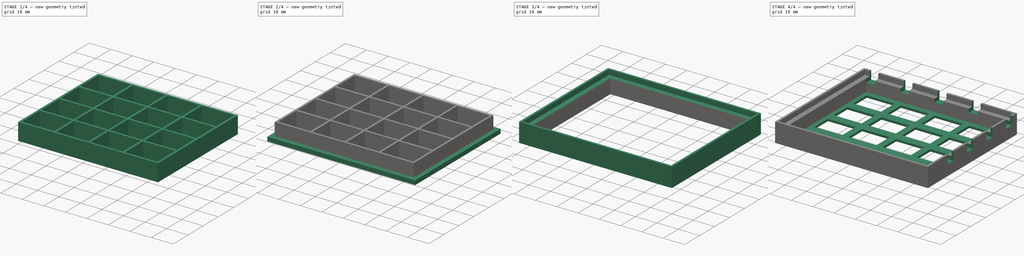
[diagram: build sequence overview — one tinted view per stage of 4, left to right]
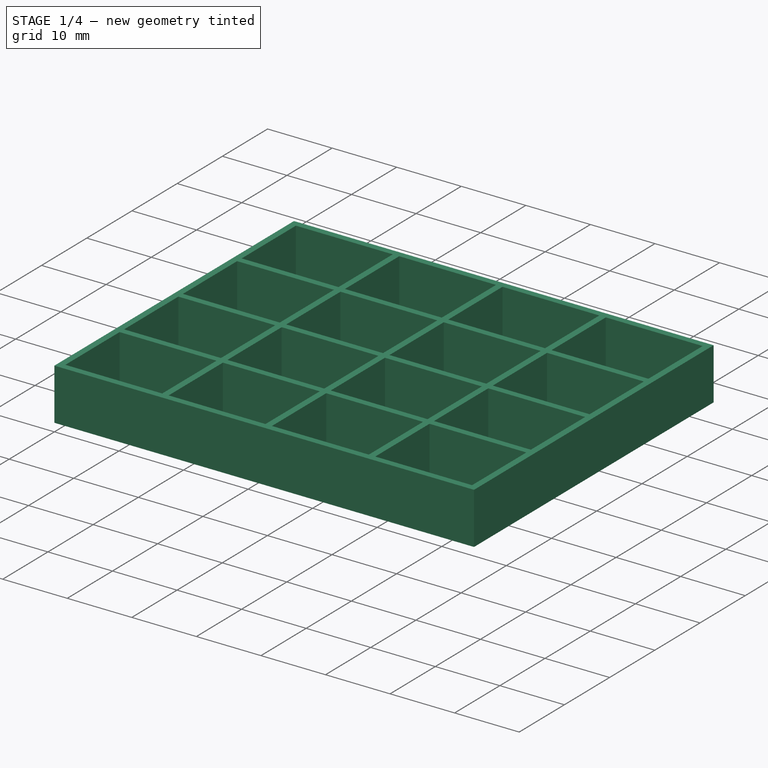
[diagram: stage 1 of 4 — iso view after this stage's code; geometry added in this stage tinted green]
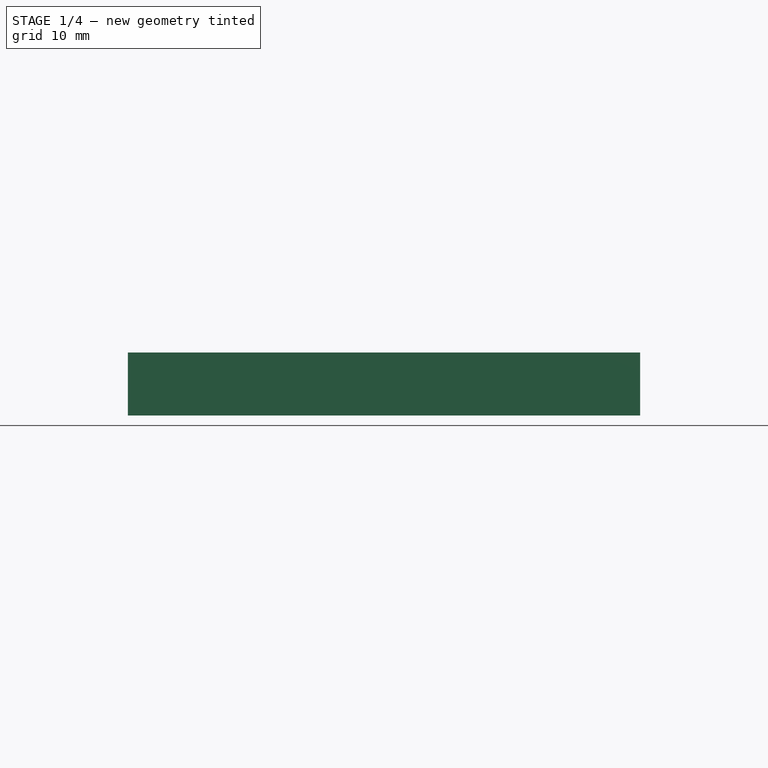
[diagram: stage 1 of 4 — front view after this stage's code; geometry added in this stage tinted green]
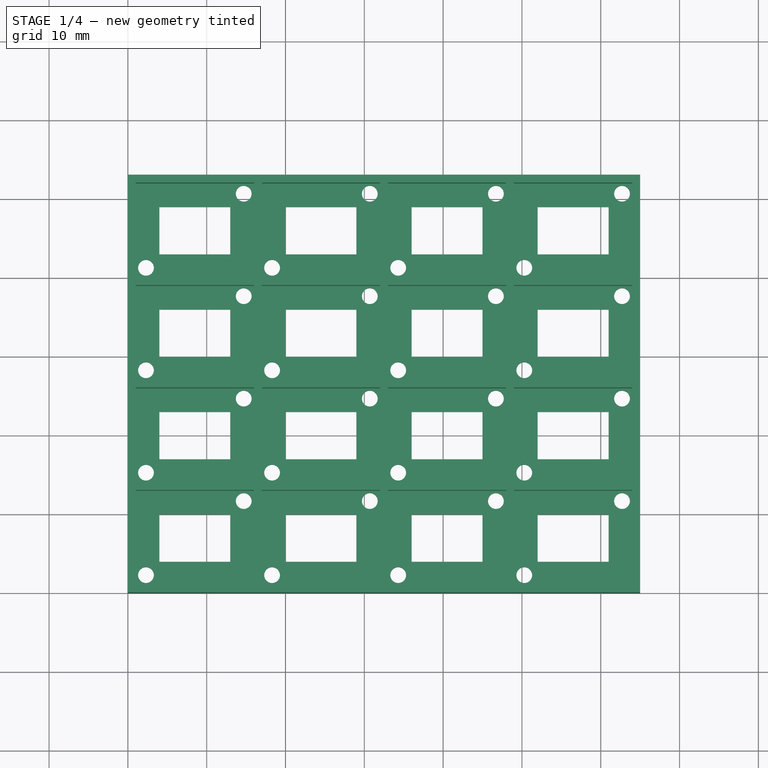
[diagram: stage 1 of 4 — top view after this stage's code; geometry added in this stage tinted green]
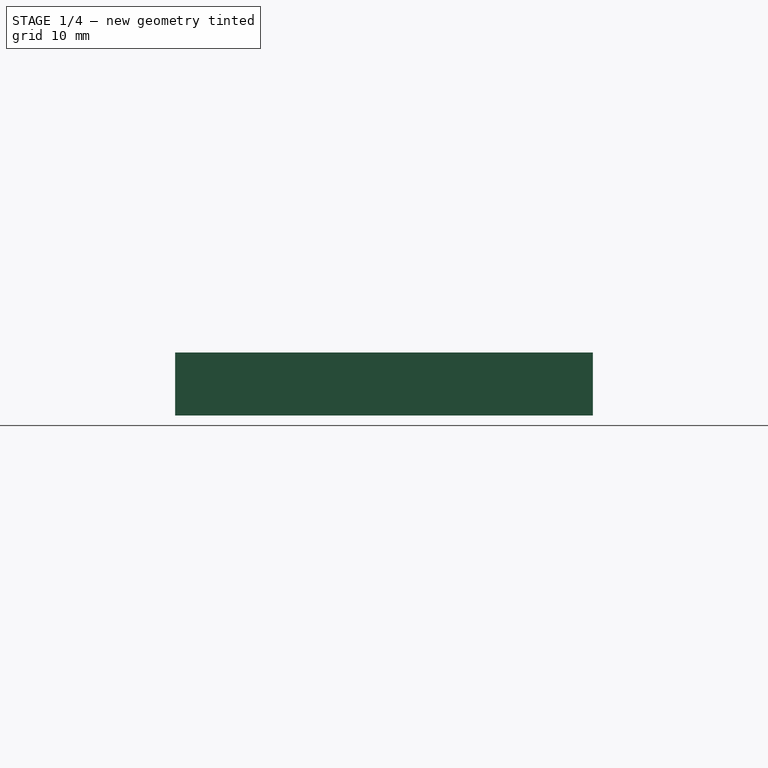
[diagram: stage 1 of 4 — right view after this stage's code; geometry added in this stage tinted green]
FCSTD DOCUMENT  (FreeCAD 0.21R33771 (Git))
Label: FINAL_4x4matrix
License: All rights reserved
LicenseURL: http://en.wikipedia.org/wiki/All_rights_reserved
objects: Sketcher::SketchObject×12, PartDesign::Pad×6, PartDesign::Pocket×5, PartDesign::Body×3, PartDesign::ShapeBinder×2, App::MeasureDistance×2, Spreadsheet::Sheet×1
note: 39 computed .brp shape members not serialized (recipe doc carries the construction recipe); baked Part::Feature solids carry a one-line shape summary decoded from their .brp

FEATURE [Spreadsheet::Sheet] Spreadsheet
  cells = A3='outer wall thickness; B3(outerThickness)=1; D3='Lid fit tolerance (linear); E3(tol)=0.3; A4='inner pin volume length; B4(innerLenght)=15; D4='Lid depth; E4(lidDepth)=5; A5='inner pin volume height; B5(innerHeight)=7; D5='PinHole Lenght; E5(holeLenght)=13; A6='inner pin volume width; B6(innerWidth)=12; D6='PinHole Width; E6(holeWidth)=9; A7='terminal hole radius; B7(terminalRad)=1
FEATURE [Sketcher::SketchObject] Sketch  label="base sketch"
  FullyConstrained = true
  MapMode = 5
  Support = -> [XY_Plane]
  expr: Constraints[10] = <<Spreadsheet>>.innerWidth * 4 + <<Spreadsheet>>.outerThickness * 5
  expr: Constraints[120] = <<Spreadsheet>>.innerLenght - <<Spreadsheet>>.terminalRad * 4 - 2
  expr: Constraints[168] = <<Spreadsheet>>.terminalRad * 4 + 2 + <<Spreadsheet>>.outerThickness
  expr: Constraints[46] = <<Spreadsheet>>.innerWidth - 6
  expr: Constraints[58] = <<Spreadsheet>>.outerThickness + 6
  expr: Constraints[76] = <<Spreadsheet>>.terminalRad * 2 + 1 + <<Spreadsheet>>.outerThickness
  expr: Constraints[9] = <<Spreadsheet>>.innerLenght * 4 + <<Spreadsheet>>.outerThickness * 5
  sketch-geometry (93):
    g0: LineSegment StartX=0 StartY=0 StartZ=0 EndX=65 EndY=0 EndZ=0
    g1: LineSegment StartX=65 StartY=0 StartZ=0 EndX=65 EndY=53 EndZ=0
    g2: LineSegment StartX=65 StartY=53 StartZ=0 EndX=0 EndY=53 EndZ=0
    g3: LineSegment StartX=0 StartY=53 StartZ=0 EndX=0 EndY=0 EndZ=0
    g4: LineSegment StartX=4 StartY=49 StartZ=0 EndX=61 EndY=49 EndZ=0
    g5: LineSegment StartX=61 StartY=49 StartZ=0 EndX=61 EndY=43 EndZ=0
    g6: LineSegment StartX=61 StartY=43 StartZ=0 EndX=4 EndY=43 EndZ=0
    g7: LineSegment StartX=4 StartY=43 StartZ=0 EndX=4 EndY=49 EndZ=0
    g8: LineSegment StartX=4 StartY=36 StartZ=0 EndX=61 EndY=36 EndZ=0
    g9: LineSegment StartX=61 StartY=36 StartZ=0 EndX=61 EndY=30 EndZ=0
    g10: LineSegment StartX=61 StartY=30 StartZ=0 EndX=4 EndY=30 EndZ=0
    g11: LineSegment StartX=4 StartY=30 StartZ=0 EndX=4 EndY=36 EndZ=0
    g12: LineSegment StartX=4 StartY=23 StartZ=0 EndX=61 EndY=23 EndZ=0
    g13: LineSegment StartX=61 StartY=23 StartZ=0 EndX=61 EndY=17 EndZ=0
    g14: LineSegment StartX=61 StartY=17 StartZ=0 EndX=4 EndY=17 EndZ=0
    g15: LineSegment StartX=4 StartY=17 StartZ=0 EndX=4 EndY=23 EndZ=0
    g16: LineSegment StartX=4 StartY=10 StartZ=0 EndX=61 EndY=10 EndZ=0
    g17: LineSegment StartX=61 StartY=10 StartZ=0 EndX=61 EndY=4 EndZ=0
    g18: LineSegment StartX=61 StartY=4 StartZ=0 EndX=4 EndY=4 EndZ=0
    g19: LineSegment StartX=4 StartY=4 StartZ=0 EndX=4 EndY=10 EndZ=0
    g20: LineSegment StartX=61 StartY=43 StartZ=0 EndX=61 EndY=36 EndZ=0
    g21: LineSegment StartX=61 StartY=30 StartZ=0 EndX=61 EndY=23 EndZ=0
    g22: LineSegment StartX=61 StartY=17 StartZ=0 EndX=61 EndY=10 EndZ=0
    g23: LineSegment StartX=4 StartY=49 StartZ=0 EndX=4 EndY=53 EndZ=0
    g24: LineSegment StartX=4 StartY=4 StartZ=0 EndX=4 EndY=0 EndZ=0
    g25: LineSegment StartX=4 StartY=49 StartZ=0 EndX=0 EndY=49 EndZ=0
    g26: LineSegment StartX=61 StartY=4 StartZ=0 EndX=65 EndY=4 EndZ=0
    g27: LineSegment StartX=4 StartY=49 StartZ=0 EndX=13 EndY=49 EndZ=0
    g28: LineSegment StartX=13 StartY=49 StartZ=0 EndX=13 EndY=43 EndZ=0
    g29: LineSegment StartX=13 StartY=43 StartZ=0 EndX=4 EndY=43 EndZ=0
    g30: LineSegment StartX=4 StartY=43 StartZ=0 EndX=4 EndY=49 EndZ=0
    g31: LineSegment StartX=4 StartY=36 StartZ=0 EndX=13 EndY=36 EndZ=0
    g32: LineSegment StartX=13 StartY=36 StartZ=0 EndX=13 EndY=30 EndZ=0
    g33: LineSegment StartX=13 StartY=30 StartZ=0 EndX=4 EndY=30 EndZ=0
    g34: LineSegment StartX=4 StartY=30 StartZ=0 EndX=4 EndY=36 EndZ=0
    g35: LineSegment StartX=4 StartY=23 StartZ=0 EndX=13 EndY=23 EndZ=0
    g36: LineSegment StartX=13 StartY=23 StartZ=0 EndX=13 EndY=17 EndZ=0
    g37: LineSegment StartX=13 StartY=17 StartZ=0 EndX=4 EndY=17 EndZ=0
    g38: LineSegment StartX=4 StartY=17 StartZ=0 EndX=4 EndY=23 EndZ=0
    g39: LineSegment StartX=4 StartY=10 StartZ=0 EndX=13 EndY=10 EndZ=0
    g40: LineSegment StartX=13 StartY=10 StartZ=0 EndX=13 EndY=4 EndZ=0
    g41: LineSegment StartX=13 StartY=4 StartZ=0 EndX=4 EndY=4 EndZ=0
    g42: LineSegment StartX=4 StartY=4 StartZ=0 EndX=4 EndY=10 EndZ=0
    g43: LineSegment StartX=20 StartY=49 StartZ=0 EndX=29 EndY=49 EndZ=0
    g44: LineSegment StartX=29 StartY=49 StartZ=0 EndX=29 EndY=43 EndZ=0
    g45: LineSegment StartX=29 StartY=43 StartZ=0 EndX=20 EndY=43 EndZ=0
    g46: LineSegment StartX=20 StartY=43 StartZ=0 EndX=20 EndY=49 EndZ=0
    g47: LineSegment StartX=20 StartY=36 StartZ=0 EndX=29 EndY=36 EndZ=0
    g48: LineSegment StartX=29 StartY=36 StartZ=0 EndX=29 EndY=30 EndZ=0
    g49: LineSegment StartX=29 StartY=30 StartZ=0 EndX=20 EndY=30 EndZ=0
    g50: LineSegment StartX=20 StartY=30 StartZ=0 EndX=20 EndY=36 EndZ=0
    g51: LineSegment StartX=20 StartY=23 StartZ=0 EndX=29 EndY=23 EndZ=0
    g52: LineSegment StartX=29 StartY=23 StartZ=0 EndX=29 EndY=17 EndZ=0
    g53: LineSegment StartX=29 StartY=17 StartZ=0 EndX=20 EndY=17 EndZ=0
    g54: LineSegment StartX=20 StartY=17 StartZ=0 EndX=20 EndY=23 EndZ=0
    g55: LineSegment StartX=20 StartY=10 StartZ=0 EndX=29 EndY=10 EndZ=0
    g56: LineSegment StartX=29 StartY=10 StartZ=0 EndX=29 EndY=4 EndZ=0
    g57: LineSegment StartX=29 StartY=4 StartZ=0 EndX=20 EndY=4 EndZ=0
    g58: LineSegment StartX=20 StartY=4 StartZ=0 EndX=20 EndY=10 EndZ=0
    g59: LineSegment StartX=36 StartY=49 StartZ=0 EndX=45 EndY=49 EndZ=0
    g60: LineSegment StartX=45 StartY=49 StartZ=0 EndX=45 EndY=43 EndZ=0
    g61: LineSegment StartX=45 StartY=43 StartZ=0 EndX=36 EndY=43 EndZ=0
    g62: LineSegment StartX=36 StartY=43 StartZ=0 EndX=36 EndY=49 EndZ=0
    g63: LineSegment StartX=36 StartY=36 StartZ=0 EndX=45 EndY=36 EndZ=0
    g64: LineSegment StartX=45 StartY=36 StartZ=0 EndX=45 EndY=30 EndZ=0
    g65: LineSegment StartX=45 StartY=30 StartZ=0 EndX=36 EndY=30 EndZ=0
    g66: LineSegment StartX=36 StartY=30 StartZ=0 EndX=36 EndY=36 EndZ=0
    g67: LineSegment StartX=36 StartY=23 StartZ=0 EndX=45 EndY=23 EndZ=0
    g68: LineSegment StartX=45 StartY=23 StartZ=0 EndX=45 EndY=17 EndZ=0
    g69: LineSegment StartX=45 StartY=17 StartZ=0 EndX=36 EndY=17 EndZ=0
    g70: LineSegment StartX=36 StartY=17 StartZ=0 EndX=36 EndY=23 EndZ=0
    g71: LineSegment StartX=36 StartY=10 StartZ=0 EndX=45 EndY=10 EndZ=0
    g72: LineSegment StartX=45 StartY=10 StartZ=0 EndX=45 EndY=4 EndZ=0
    g73: LineSegment StartX=45 StartY=4 StartZ=0 EndX=36 EndY=4 EndZ=0
    g74: LineSegment StartX=36 StartY=4 StartZ=0 EndX=36 EndY=10 EndZ=0
    g75: LineSegment StartX=29 StartY=49 StartZ=0 EndX=36 EndY=49 EndZ=0
    g76: LineSegment StartX=13 StartY=49 StartZ=0 EndX=20 EndY=49 EndZ=0
    g77: LineSegment StartX=61 StartY=49 StartZ=0 EndX=52 EndY=49 EndZ=0
    g78: LineSegment StartX=52 StartY=49 StartZ=0 EndX=52 EndY=43 EndZ=0
    g79: LineSegment StartX=52 StartY=43 StartZ=0 EndX=61 EndY=43 EndZ=0
    g80: LineSegment StartX=61 StartY=43 StartZ=0 EndX=61 EndY=49 EndZ=0
    g81: LineSegment StartX=61 StartY=36 StartZ=0 EndX=52 EndY=36 EndZ=0
    g82: LineSegment StartX=52 StartY=36 StartZ=0 EndX=52 EndY=30 EndZ=0
    g83: LineSegment StartX=52 StartY=30 StartZ=0 EndX=61 EndY=30 EndZ=0
    g84: LineSegment StartX=61 StartY=30 StartZ=0 EndX=61 EndY=36 EndZ=0
    g85: LineSegment StartX=61 StartY=23 StartZ=0 EndX=52 EndY=23 EndZ=0
    g86: LineSegment StartX=52 StartY=23 StartZ=0 EndX=52 EndY=17 EndZ=0
    g87: LineSegment StartX=52 StartY=17 StartZ=0 EndX=61 EndY=17 EndZ=0
    g88: LineSegment StartX=61 StartY=17 StartZ=0 EndX=61 EndY=23 EndZ=0
    g89: LineSegment StartX=61 StartY=10 StartZ=0 EndX=52 EndY=10 EndZ=0
    g90: LineSegment StartX=52 StartY=10 StartZ=0 EndX=52 EndY=4 EndZ=0
    g91: LineSegment StartX=52 StartY=4 StartZ=0 EndX=61 EndY=4 EndZ=0
    g92: LineSegment StartX=61 StartY=4 StartZ=0 EndX=61 EndY=10 EndZ=0
  constraints (265):
    c: Coincident(g0,g1)
    c: Coincident(g1,g2)
    c: Coincident(g2,g3)
    c: Coincident(g3,g0)
    c: Horizontal(g0)
    c: Horizontal(g2)
    c: Vertical(g1)
    c: Vertical(g3)
    c: Coincident(g0,g-1)
    c: DistanceX(g2,g2) = 65
    c: DistanceY(g1,g1) = 53
    c: Coincident(g4,g5)
    c: Coincident(g5,g6)
    c: Coincident(g6,g7)
    c: Coincident(g7,g4)
    c: Horizontal(g4)
    c: Horizontal(g6)
    c: Vertical(g5)
    c: Vertical(g7)
    c: Coincident(g8,g9)
    c: Coincident(g9,g10)
    c: Coincident(g10,g11)
    c: Coincident(g11,g8)
    c: Horizontal(g8)
    c: Horizontal(g10)
    c: Vertical(g9)
    c: Vertical(g11)
    c: Coincident(g12,g13)
    c: Coincident(g13,g14)
    c: Coincident(g14,g15)
    c: Coincident(g15,g12)
    c: Horizontal(g12)
    c: Horizontal(g14)
    c: Vertical(g13)
    c: Vertical(g15)
    c: Coincident(g16,g17)
    c: Coincident(g17,g18)
    c: Coincident(g18,g19)
    c: Coincident(g19,g16)
    c: Horizontal(g16)
    c: Horizontal(g18)
    c: Vertical(g17)
    c: Vertical(g19)
    c: Equal(g7,g11)
    c: Equal(g11,g15)
    c: Equal(g15,g19)
    c: DistanceY(g5,g5) = 6
    c: Coincident(g20,g5)
    c: Coincident(g20,g8)
    c: Vertical(g20)
    c: Coincident(g21,g12)
    c: Vertical(g21)
    c: Coincident(g22,g13)
    c: Coincident(g22,g16)
    c: Vertical(g22)
    c: Coincident(g9,g21)
    c: Equal(g20,g22)
    c: Equal(g22,g21)
    c: DistanceY(g20,g20) = 7
    c: Vertical(g6,g8)
    c: Vertical(g8,g12)
    c: Vertical(g12,g16)
    c: Coincident(g23,g4)
    c: PointOnObject(g23,g2)
    c: Vertical(g23)
    c: Coincident(g24,g18)
    c: PointOnObject(g24,g0)
    c: Vertical(g24)
    c: Equal(g24,g23)
    c: Coincident(g25,g4)
    c: PointOnObject(g25,g3)
    c: Horizontal(g25)
    c: Coincident(g26,g17)
    c: PointOnObject(g26,g1)
    c: Horizontal(g26)
    c: Equal(g26,g25)
    c: DistanceX(g25,g25) = 4
    c: Coincident(g27,g28)
    c: Coincident(g28,g29)
    c: Coincident(g29,g30)
    c: Coincident(g30,g27)
    c: Horizontal(g27)
    c: Horizontal(g29)
    c: Vertical(g28)
    c: Vertical(g30)
    c: PointOnObject(g27,g4)
    c: Coincident(g31,g32)
    c: Coincident(g32,g33)
    c: Coincident(g33,g34)
    c: Coincident(g34,g31)
    c: Horizontal(g31)
    c: Horizontal(g33)
    c: Vertical(g32)
    c: Vertical(g34)
    c: PointOnObject(g32,g10)
    c: Coincident(g35,g36)
    c: Coincident(g36,g37)
    c: Coincident(g37,g38)
    c: Coincident(g38,g35)
    c: Horizontal(g35)
    c: Horizontal(g37)
    c: Vertical(g36)
    c: Vertical(g38)
    c: PointOnObject(g35,g12)
    c: Coincident(g39,g40)
    c: Coincident(g40,g41)
    c: Coincident(g41,g42)
    c: Coincident(g42,g39)
    c: Horizontal(g39)
    c: Horizontal(g41)
    c: Vertical(g40)
    c: Vertical(g42)
    c: PointOnObject(g40,g18)
    c: Coincident(g37,g14)
    c: Coincident(g39,g16)
    c: Coincident(g31,g8)
    c: Coincident(g29,g6)
    c: Equal(g29,g31)
    c: Equal(g31,g35)
    c: Equal(g35,g39)
    c: DistanceX(g27,g27) = 9
    c: Coincident(g43,g44)
    c: Coincident(g44,g45)
    c: Coincident(g45,g46)
    c: Coincident(g46,g43)
    c: Horizontal(g43)
    c: Horizontal(g45)
    c: Vertical(g44)
    c: Vertical(g46)
    c: PointOnObject(g43,g4)
    c: PointOnObject(g44,g6)
    c: Coincident(g47,g48)
    c: Coincident(g48,g49)
    c: Coincident(g49,g50)
    c: Coincident(g50,g47)
    c: Horizontal(g47)
    c: Horizontal(g49)
    c: Vertical(g48)
    c: Vertical(g50)
    c: PointOnObject(g47,g8)
    c: PointOnObject(g48,g10)
    c: Coincident(g51,g52)
    c: Coincident(g52,g53)
    c: Coincident(g53,g54)
    c: Coincident(g54,g51)
    c: Horizontal(g51)
    c: Horizontal(g53)
    c: Vertical(g52)
    c: Vertical(g54)
    c: PointOnObject(g51,g12)
    c: PointOnObject(g52,g14)
    c: Coincident(g55,g56)
    c: Coincident(g56,g57)
    c: Coincident(g57,g58)
    c: Coincident(g58,g55)
    c: Horizontal(g55)
    c: Horizontal(g57)
    c: Vertical(g56)
    c: Vertical(g58)
    c: PointOnObject(g55,g16)
    c: PointOnObject(g56,g18)
    c: Equal(g45,g47)
    c: Equal(g47,g51)
    c: Equal(g51,g55)
    c: Equal(g39,g57)
    c: Vertical(g45,g47)
    c: Vertical(g47,g51)
    c: Vertical(g51,g55)
    c: DistanceX(g27,g43) = 7
    c: Coincident(g59,g60)
    c: Coincident(g60,g61)
    c: Coincident(g61,g62)
    c: Coincident(g62,g59)
    c: Horizontal(g59)
    c: Horizontal(g61)
    c: Vertical(g60)
    c: Vertical(g62)
    c: PointOnObject(g59,g4)
    c: PointOnObject(g60,g6)
    c: Coincident(g63,g64)
    c: Coincident(g64,g65)
    c: Coincident(g65,g66)
    c: Coincident(g66,g63)
    c: Horizontal(g63)
    c: Horizontal(g65)
    c: Vertical(g64)
    c: Vertical(g66)
    c: PointOnObject(g63,g8)
    c: PointOnObject(g64,g10)
    c: Coincident(g67,g68)
    c: Coincident(g68,g69)
    c: Coincident(g69,g70)
    c: Coincident(g70,g67)
    c: Horizontal(g67)
    c: Horizontal(g69)
    c: Vertical(g68)
    c: Vertical(g70)
    c: PointOnObject(g67,g12)
    c: PointOnObject(g68,g14)
    c: Coincident(g71,g72)
    c: Coincident(g72,g73)
    c: Coincident(g73,g74)
    c: Coincident(g74,g71)
    c: Horizontal(g71)
    c: Horizontal(g73)
    c: Vertical(g72)
    c: Vertical(g74)
    c: PointOnObject(g71,g16)
    c: PointOnObject(g72,g18)
    c: Equal(g73,g57)
    c: Equal(g57,g69)
    c: Equal(g69,g65)
    c: Equal(g65,g61)
    c: Vertical(g61,g63)
    c: Vertical(g63,g67)
    c: Vertical(g67,g71)
    c: Coincident(g75,g43)
    c: Coincident(g75,g59)
    c: Coincident(g76,g27)
    c: Coincident(g76,g43)
    c: Equal(g75,g76)
    c: Coincident(g77,g78)
    c: Coincident(g78,g79)
    c: Coincident(g79,g80)
    c: Coincident(g80,g77)
    c: Horizontal(g77)
    c: Horizontal(g79)
    c: Vertical(g78)
    c: Vertical(g80)
    c: Coincident(g77,g4)
    c: PointOnObject(g78,g6)
    c: Coincident(g81,g82)
    c: Coincident(g82,g83)
    c: Coincident(g83,g84)
    c: Coincident(g84,g81)
    c: Horizontal(g81)
    c: Horizontal(g83)
    c: Vertical(g82)
    c: Vertical(g84)
    c: Coincident(g81,g8)
    c: PointOnObject(g82,g10)
    c: Coincident(g85,g86)
    c: Coincident(g86,g87)
    c: Coincident(g87,g88)
    c: Coincident(g88,g85)
    c: Horizontal(g85)
    c: Horizontal(g87)
    c: Vertical(g86)
    c: Vertical(g88)
    c: Coincident(g85,g12)
    c: PointOnObject(g86,g14)
    c: Coincident(g89,g90)
    c: Coincident(g90,g91)
    c: Coincident(g91,g92)
    c: Coincident(g92,g89)
    c: Horizontal(g89)
    c: Horizontal(g91)
    c: Vertical(g90)
    c: Vertical(g92)
    c: PointOnObject(g89,g16)
    c: Equal(g73,g91)
    c: Equal(g91,g87)
    c: Equal(g87,g83)
    c: Equal(g83,g79)
    c: Coincident(g91,g17)
FEATURE [PartDesign::Pad] Pad  label="Base"
  Direction = (1,1,1)
  Length = 1
  Length2 = 100
  Profile = -> Sketch
  Type = 0
  expr: Length = <<Spreadsheet>>.outerThickness
FEATURE [Sketcher::SketchObject] Sketch001
  ExternalGeometry = -> [Pad]
  FullyConstrained = true
  MapMode = 5
  Support = -> [XY_Plane]
  expr: Constraints[12] = <<Spreadsheet>>.terminalRad
  expr: Constraints[13] = <<Spreadsheet>>.outerThickness + <<Spreadsheet>>.terminalRad + <<Spreadsheet>>.tol
  expr: Constraints[16] = <<Spreadsheet>>.innerWidth + <<Spreadsheet>>.outerThickness
  expr: Constraints[83] = <<Spreadsheet>>.innerLenght + <<Spreadsheet>>.outerThickness
  sketch-geometry (66):
    g0: Circle CenterX=2.3 CenterY=41.3 CenterZ=0 NormalX=0 NormalY=0 NormalZ=1 AngleXU=0 Radius=1
    g1: Circle CenterX=2.3 CenterY=28.3 CenterZ=0 NormalX=0 NormalY=0 NormalZ=1 AngleXU=0 Radius=1
    g2: Circle CenterX=2.3 CenterY=15.3 CenterZ=0 NormalX=0 NormalY=0 NormalZ=1 AngleXU=0 Radius=1
    g3: Circle CenterX=2.3 CenterY=2.3 CenterZ=0 NormalX=0 NormalY=0 NormalZ=1 AngleXU=0 Radius=1
    g4: LineSegment StartX=2.3 StartY=41.3 StartZ=0 EndX=2.3 EndY=28.3 EndZ=0
    g5: LineSegment StartX=2.3 StartY=28.3 StartZ=0 EndX=2.3 EndY=15.3 EndZ=0
    g6: LineSegment StartX=2.3 StartY=15.3 StartZ=0 EndX=2.3 EndY=2.3 EndZ=0
    g7: LineSegment StartX=2.3 StartY=2.3 StartZ=0 EndX=0 EndY=2.3 EndZ=0
    g8: LineSegment StartX=2.3 StartY=2.3 StartZ=0 EndX=2.3 EndY=0 EndZ=0
    g9: Circle CenterX=18.3 CenterY=41.3 CenterZ=0 NormalX=0 NormalY=0 NormalZ=1 AngleXU=0 Radius=1
    g10: Circle CenterX=18.3 CenterY=28.3 CenterZ=0 NormalX=0 NormalY=0 NormalZ=1 AngleXU=0 Radius=1
    g11: Circle CenterX=18.3 CenterY=15.3 CenterZ=0 NormalX=0 NormalY=0 NormalZ=1 AngleXU=0 Radius=1
    g12: Circle CenterX=18.3 CenterY=2.3 CenterZ=0 NormalX=0 NormalY=0 NormalZ=1 AngleXU=0 Radius=1
    g13: LineSegment StartX=18.3 StartY=41.3 StartZ=0 EndX=18.3 EndY=28.3 EndZ=0
    g14: LineSegment StartX=18.3 StartY=28.3 StartZ=0 EndX=18.3 EndY=15.3 EndZ=0
    g15: LineSegment StartX=18.3 StartY=15.3 StartZ=0 EndX=18.3 EndY=2.3 EndZ=0
    g16: Circle CenterX=34.3 CenterY=41.3 CenterZ=0 NormalX=0 NormalY=0 NormalZ=1 AngleXU=0 Radius=1
    g17: Circle CenterX=34.3 CenterY=28.3 CenterZ=0 NormalX=0 NormalY=0 NormalZ=1 AngleXU=0 Radius=1
    g18: Circle CenterX=34.3 CenterY=15.3 CenterZ=0 NormalX=0 NormalY=0 NormalZ=1 AngleXU=0 Radius=1
    g19: Circle CenterX=34.3 CenterY=2.3 CenterZ=0 NormalX=0 NormalY=0 NormalZ=1 AngleXU=0 Radius=1
    g20: LineSegment StartX=34.3 StartY=41.3 StartZ=0 EndX=34.3 EndY=28.3 EndZ=0
    g21: LineSegment StartX=34.3 StartY=28.3 StartZ=0 EndX=34.3 EndY=15.3 EndZ=0
    g22: LineSegment StartX=34.3 StartY=15.3 StartZ=0 EndX=34.3 EndY=2.3 EndZ=0
    g23: Circle CenterX=50.3 CenterY=41.3 CenterZ=0 NormalX=0 NormalY=0 NormalZ=1 AngleXU=0 Radius=1
    g24: Circle CenterX=50.3 CenterY=28.3 CenterZ=0 NormalX=0 NormalY=0 NormalZ=1 AngleXU=0 Radius=1
    g25: Circle CenterX=50.3 CenterY=15.3 CenterZ=0 NormalX=0 NormalY=0 NormalZ=1 AngleXU=0 Radius=1
    g26: Circle CenterX=50.3 CenterY=2.3 CenterZ=0 NormalX=0 NormalY=0 NormalZ=1 AngleXU=0 Radius=1
    g27: LineSegment StartX=50.3 StartY=41.3 StartZ=0 EndX=50.3 EndY=28.3 EndZ=0
    g28: LineSegment StartX=50.3 StartY=28.3 StartZ=0 EndX=50.3 EndY=15.3 EndZ=0
    g29: LineSegment StartX=50.3 StartY=15.3 StartZ=0 EndX=50.3 EndY=2.3 EndZ=0
    g30: LineSegment StartX=2.3 StartY=15.3 StartZ=0 EndX=18.3 EndY=15.3 EndZ=0
    g31: LineSegment StartX=18.3 StartY=15.3 StartZ=0 EndX=34.3 EndY=15.3 EndZ=0
    g32: LineSegment StartX=34.3 StartY=15.3 StartZ=0 EndX=50.3 EndY=15.3 EndZ=0
    g33: Circle CenterX=14.7 CenterY=50.7 CenterZ=0 NormalX=0 NormalY=0 NormalZ=1 AngleXU=0 Radius=1
    g34: Circle CenterX=14.7 CenterY=37.7 CenterZ=0 NormalX=0 NormalY=0 NormalZ=1 AngleXU=0 Radius=1
    g35: Circle CenterX=14.7 CenterY=24.7 CenterZ=0 NormalX=0 NormalY=0 NormalZ=1 AngleXU=0 Radius=1
    g36: Circle CenterX=14.7 CenterY=11.7 CenterZ=0 NormalX=0 NormalY=0 NormalZ=1 AngleXU=0 Radius=1
    g37: LineSegment StartX=14.7 StartY=50.7 StartZ=0 EndX=14.7 EndY=37.7 EndZ=0
    g38: LineSegment StartX=14.7 StartY=37.7 StartZ=0 EndX=14.7 EndY=24.7 EndZ=0
    g39: LineSegment StartX=14.7 StartY=24.7 StartZ=0 EndX=14.7 EndY=11.7 EndZ=0
    g40: Circle CenterX=30.7 CenterY=50.7 CenterZ=0 NormalX=0 NormalY=0 NormalZ=1 AngleXU=0 Radius=1
    g41: Circle CenterX=30.7 CenterY=37.7 CenterZ=0 NormalX=0 NormalY=0 NormalZ=1 AngleXU=0 Radius=1
    g42: Circle CenterX=30.7 CenterY=24.7 CenterZ=0 NormalX=0 NormalY=0 NormalZ=1 AngleXU=0 Radius=1
    g43: Circle CenterX=30.7 CenterY=11.7 CenterZ=0 NormalX=0 NormalY=0 NormalZ=1 AngleXU=0 Radius=1
    g44: LineSegment StartX=30.7 StartY=50.7 StartZ=0 EndX=30.7 EndY=37.7 EndZ=0
    g45: LineSegment StartX=30.7 StartY=37.7 StartZ=0 EndX=30.7 EndY=24.7 EndZ=0
    g46: LineSegment StartX=30.7 StartY=24.7 StartZ=0 EndX=30.7 EndY=11.7 EndZ=0
    g47: Circle CenterX=46.7 CenterY=50.7 CenterZ=0 NormalX=0 NormalY=0 NormalZ=1 AngleXU=0 Radius=1
    g48: Circle CenterX=46.7 CenterY=37.7 CenterZ=0 NormalX=0 NormalY=0 NormalZ=1 AngleXU=0 Radius=1
    g49: Circle CenterX=46.7 CenterY=24.7 CenterZ=0 NormalX=0 NormalY=0 NormalZ=1 AngleXU=0 Radius=1
    g50: Circle CenterX=46.7 CenterY=11.7 CenterZ=0 NormalX=0 NormalY=0 NormalZ=1 AngleXU=0 Radius=1
    g51: LineSegment StartX=46.7 StartY=50.7 StartZ=0 EndX=46.7 EndY=37.7 EndZ=0
    g52: LineSegment StartX=46.7 StartY=37.7 StartZ=0 EndX=46.7 EndY=24.7 EndZ=0
    g53: LineSegment StartX=46.7 StartY=24.7 StartZ=0 EndX=46.7 EndY=11.7 EndZ=0
    g54: Circle CenterX=62.7 CenterY=50.7 CenterZ=0 NormalX=0 NormalY=0 NormalZ=1 AngleXU=0 Radius=1
    g55: Circle CenterX=62.7 CenterY=37.7 CenterZ=0 NormalX=0 NormalY=0 NormalZ=1 AngleXU=0 Radius=1
    g56: Circle CenterX=62.7 CenterY=24.7 CenterZ=0 NormalX=0 NormalY=0 NormalZ=1 AngleXU=0 Radius=1
    g57: Circle CenterX=62.7 CenterY=11.7 CenterZ=0 NormalX=0 NormalY=0 NormalZ=1 AngleXU=0 Radius=1
    g58: LineSegment StartX=62.7 StartY=50.7 StartZ=0 EndX=62.7 EndY=37.7 EndZ=0
    g59: LineSegment StartX=62.7 StartY=37.7 StartZ=0 EndX=62.7 EndY=24.7 EndZ=0
    g60: LineSegment StartX=62.7 StartY=24.7 StartZ=0 EndX=62.7 EndY=11.7 EndZ=0
    g61: LineSegment StartX=14.7 StartY=24.7 StartZ=0 EndX=30.7 EndY=24.7 EndZ=0
    g62: LineSegment StartX=30.7 StartY=24.7 StartZ=0 EndX=46.7 EndY=24.7 EndZ=0
    g63: LineSegment StartX=46.7 StartY=24.7 StartZ=0 EndX=62.7 EndY=24.7 EndZ=0
    g64: LineSegment StartX=62.7 StartY=50.7 StartZ=0 EndX=62.7 EndY=53 EndZ=0
    g65: LineSegment StartX=62.7 StartY=50.7 StartZ=0 EndX=65 EndY=50.7 EndZ=0
  constraints (168):
    c: Equal(g0,g1)
    c: Equal(g1,g2)
    c: Equal(g2,g3)
    c: Vertical(g0,g1)
    c: Vertical(g1,g2)
    c: Vertical(g2,g3)
    c: Coincident(g4,g0)
    c: Coincident(g4,g1)
    c: Coincident(g5,g1)
    c: Coincident(g5,g2)
    c: Coincident(g6,g2)
    c: Coincident(g6,g3)
    c: Radius(g0) = 1
    c: DistanceX(g-1,g3) = 2.3
    c: Equal(g4,g5)
    c: Equal(g5,g6)
    c: DistanceY(g4,g4) = 13
    c: Coincident(g7,g3)
    c: PointOnObject(g7,g-4)
    c: Coincident(g8,g3)
    c: PointOnObject(g8,g-6)
    c: Vertical(g8)
    c: Horizontal(g7)
    c: Equal(g7,g8)
    c: Equal(g9,g10)
    c: Equal(g10,g11)
    c: Equal(g11,g12)
    c: Vertical(g9,g10)
    c: Vertical(g10,g11)
    c: Vertical(g11,g12)
    c: Coincident(g13,g9)
    c: Coincident(g13,g10)
    c: Coincident(g14,g10)
    c: Coincident(g14,g11)
    c: Coincident(g15,g11)
    c: Coincident(g15,g12)
    c: Equal(g0,g9) = 1
    c: Equal(g13,g14)
    c: Equal(g14,g15)
    c: Equal(g4,g13) = 13
    c: Equal(g16,g17)
    c: Equal(g17,g18)
    c: Equal(g18,g19)
    c: Vertical(g16,g17)
    c: Vertical(g17,g18)
    c: Vertical(g18,g19)
    c: Coincident(g20,g16)
    c: Coincident(g20,g17)
    c: Coincident(g21,g17)
    c: Coincident(g21,g18)
    c: Coincident(g22,g18)
    c: Coincident(g22,g19)
    c: Equal(g0,g16) = 1
    c: Equal(g20,g21)
    c: Equal(g21,g22)
    c: Equal(g4,g20) = 13
    c: Equal(g23,g24)
    c: Equal(g24,g25)
    c: Equal(g25,g26)
    c: Vertical(g23,g24)
    c: Vertical(g24,g25)
    c: Vertical(g25,g26)
    c: Coincident(g27,g23)
    c: Coincident(g27,g24)
    c: Coincident(g28,g24)
    c: Coincident(g28,g25)
    c: Coincident(g29,g25)
    c: Coincident(g29,g26)
    c: Equal(g0,g23) = 1
    c: Equal(g27,g28)
    c: Equal(g28,g29)
    c: Equal(g4,g27) = 13
    c: Coincident(g30,g2)
    c: Coincident(g30,g11)
    c: Coincident(g31,g11)
    c: Coincident(g31,g18)
    c: Horizontal(g31)
    c: Coincident(g32,g18)
    c: Coincident(g32,g25)
    c: Horizontal(g32)
    c: Horizontal(g30)
    c: Equal(g30,g31)
    c: Equal(g31,g32)
    c: DistanceX(g30,g30) = 16
    c: Equal(g33,g34)
    c: Equal(g34,g35)
    c: Equal(g35,g36)
    c: Vertical(g33,g34)
    c: Vertical(g34,g35)
    c: Vertical(g35,g36)
    c: Coincident(g37,g33)
    c: Coincident(g37,g34)
    c: Coincident(g38,g34)
    c: Coincident(g38,g35)
    c: Coincident(g39,g35)
    c: Coincident(g39,g36)
    c: Equal(g0,g33) = 1
    c: Equal(g37,g38)
    c: Equal(g38,g39)
    c: Equal(g4,g37) = 13
    c: Equal(g40,g41)
    c: Equal(g41,g42)
    c: Equal(g42,g43)
    c: Vertical(g40,g41)
    c: Vertical(g41,g42)
    c: Vertical(g42,g43)
    c: Coincident(g44,g40)
    c: Coincident(g44,g41)
    c: Coincident(g45,g41)
    c: Coincident(g45,g42)
    c: Coincident(g46,g42)
    c: Coincident(g46,g43)
    c: Equal(g33,g40) = 1
    c: Equal(g44,g45)
    c: Equal(g45,g46)
    c: Equal(g37,g44) = 13
    c: Equal(g47,g48)
    c: Equal(g48,g49)
    c: Equal(g49,g50)
    c: Vertical(g47,g48)
    c: Vertical(g48,g49)
    c: Vertical(g49,g50)
    c: Coincident(g51,g47)
    c: Coincident(g51,g48)
    c: Coincident(g52,g48)
    c: Coincident(g52,g49)
    c: Coincident(g53,g49)
    c: Coincident(g53,g50)
    c: Equal(g33,g47) = 1
    c: Equal(g51,g52)
    c: Equal(g52,g53)
    c: Equal(g37,g51) = 13
    c: Equal(g54,g55)
    c: Equal(g55,g56)
    c: Equal(g56,g57)
    c: Vertical(g54,g55)
    c: Vertical(g55,g56)
    c: Vertical(g56,g57)
    c: Coincident(g58,g54)
    c: Coincident(g58,g55)
    c: Coincident(g59,g55)
    c: Coincident(g59,g56)
    c: Coincident(g60,g56)
    c: Coincident(g60,g57)
    c: Equal(g33,g54) = 1
    c: Equal(g58,g59)
    c: Equal(g59,g60)
    c: Equal(g37,g58) = 13
    c: Coincident(g61,g35)
    c: Coincident(g61,g42)
    c: Coincident(g62,g42)
    c: Coincident(g62,g49)
    c: Horizontal(g62)
    c: Coincident(g63,g49)
    c: Coincident(g63,g56)
    c: Horizontal(g63)
    c: Horizontal(g61)
    c: Equal(g61,g62)
    c: Equal(g62,g63)
    c: Equal(g30,g61) = 16
    c: Coincident(g64,g54)
    c: PointOnObject(g64,g-3)
    c: Vertical(g64)
    c: Coincident(g65,g54)
    c: PointOnObject(g65,g-5)
    c: Horizontal(g65)
    c: Equal(g65,g64)
    c: Equal(g64,g7)
FEATURE [PartDesign::Pocket] Pocket  label="Terminal holes Base"
  BaseFeature = -> Pad
  Direction = (1,1,1)
  Length = 5
  Length2 = 100
  Profile = -> Sketch001
  Reversed = true
  Type = 1
FEATURE [Sketcher::SketchObject] Sketch002
  ExternalGeometry = -> [Pocket]
  FullyConstrained = true
  MapMode = 5
  Support = -> [XY_Plane]
  expr: Constraints[64] = <<Spreadsheet>>.innerWidth
  expr: Constraints[68] = <<Spreadsheet>>.innerLenght
  sketch-geometry (86):
    g0: LineSegment StartX=0 StartY=53 StartZ=0 EndX=65 EndY=53 EndZ=0
    g1: LineSegment StartX=65 StartY=53 StartZ=0 EndX=65 EndY=0 EndZ=0
    g2: LineSegment StartX=65 StartY=0 StartZ=0 EndX=0 EndY=0 EndZ=0
    g3: LineSegment StartX=0 StartY=0 StartZ=0 EndX=0 EndY=53 EndZ=0
    g4: LineSegment StartX=1 StartY=52 StartZ=0 EndX=16 EndY=52 EndZ=0
    g5: LineSegment StartX=16 StartY=52 StartZ=0 EndX=16 EndY=40 EndZ=0
    g6: LineSegment StartX=16 StartY=40 StartZ=0 EndX=1 EndY=40 EndZ=0
    g7: LineSegment StartX=1 StartY=40 StartZ=0 EndX=1 EndY=52 EndZ=0
    g8: LineSegment StartX=1 StartY=39 StartZ=0 EndX=16 EndY=39 EndZ=0
    g9: LineSegment StartX=16 StartY=39 StartZ=0 EndX=16 EndY=27 EndZ=0
    g10: LineSegment StartX=16 StartY=27 StartZ=0 EndX=1 EndY=27 EndZ=0
    g11: LineSegment StartX=1 StartY=27 StartZ=0 EndX=1 EndY=39 EndZ=0
    g12: LineSegment StartX=1 StartY=26 StartZ=0 EndX=16 EndY=26 EndZ=0
    g13: LineSegment StartX=16 StartY=26 StartZ=0 EndX=16 EndY=14 EndZ=0
    g14: LineSegment StartX=16 StartY=14 StartZ=0 EndX=1 EndY=14 EndZ=0
    g15: LineSegment StartX=1 StartY=14 StartZ=0 EndX=1 EndY=26 EndZ=0
    g16: LineSegment StartX=1 StartY=13 StartZ=0 EndX=16 EndY=13 EndZ=0
    g17: LineSegment StartX=16 StartY=13 StartZ=0 EndX=16 EndY=1 EndZ=0
    g18: LineSegment StartX=16 StartY=1 StartZ=0 EndX=1 EndY=1 EndZ=0
    g19: LineSegment StartX=1 StartY=1 StartZ=0 EndX=1 EndY=13 EndZ=0
    g20: LineSegment StartX=1 StartY=52 StartZ=0 EndX=1 EndY=53 EndZ=0
    g21: LineSegment StartX=1 StartY=40 StartZ=0 EndX=1 EndY=39 EndZ=0
    g22: LineSegment StartX=1 StartY=27 StartZ=0 EndX=1 EndY=26 EndZ=0
    g23: LineSegment StartX=1 StartY=14 StartZ=0 EndX=1 EndY=13 EndZ=0
    g24: LineSegment StartX=1 StartY=1 StartZ=0 EndX=1 EndY=0 EndZ=0
    g25: LineSegment StartX=1 StartY=52 StartZ=0 EndX=0 EndY=52 EndZ=0
    g26: LineSegment StartX=17 StartY=52 StartZ=0 EndX=32 EndY=52 EndZ=0
    g27: LineSegment StartX=32 StartY=52 StartZ=0 EndX=32 EndY=40 EndZ=0
    g28: LineSegment StartX=32 StartY=40 StartZ=0 EndX=17 EndY=40 EndZ=0
    g29: LineSegment StartX=17 StartY=40 StartZ=0 EndX=17 EndY=52 EndZ=0
    g30: LineSegment StartX=17 StartY=39 StartZ=0 EndX=32 EndY=39 EndZ=0
    g31: LineSegment StartX=32 StartY=39 StartZ=0 EndX=32 EndY=27 EndZ=0
    g32: LineSegment StartX=32 StartY=27 StartZ=0 EndX=17 EndY=27 EndZ=0
    g33: LineSegment StartX=17 StartY=27 StartZ=0 EndX=17 EndY=39 EndZ=0
    g34: LineSegment StartX=17 StartY=26 StartZ=0 EndX=32 EndY=26 EndZ=0
    g35: LineSegment StartX=32 StartY=26 StartZ=0 EndX=32 EndY=14 EndZ=0
    g36: LineSegment StartX=32 StartY=14 StartZ=0 EndX=17 EndY=14 EndZ=0
    g37: LineSegment StartX=17 StartY=14 StartZ=0 EndX=17 EndY=26 EndZ=0
    g38: LineSegment StartX=17 StartY=13 StartZ=0 EndX=32 EndY=13 EndZ=0
    g39: LineSegment StartX=32 StartY=13 StartZ=0 EndX=32 EndY=1 EndZ=0
    g40: LineSegment StartX=32 StartY=1 StartZ=0 EndX=17 EndY=1 EndZ=0
    g41: LineSegment StartX=17 StartY=1 StartZ=0 EndX=17 EndY=13 EndZ=0
    g42: LineSegment StartX=17 StartY=40 StartZ=0 EndX=17 EndY=39 EndZ=0
    g43: LineSegment StartX=17 StartY=27 StartZ=0 EndX=17 EndY=26 EndZ=0
    g44: LineSegment StartX=17 StartY=14 StartZ=0 EndX=17 EndY=13 EndZ=0
    g45: LineSegment StartX=16 StartY=52 StartZ=0 EndX=17 EndY=52 EndZ=0
    g46: LineSegment StartX=33 StartY=26 StartZ=0 EndX=48 EndY=26 EndZ=0
    g47: LineSegment StartX=48 StartY=26 StartZ=0 EndX=48 EndY=14 EndZ=0
    g48: LineSegment StartX=48 StartY=14 StartZ=0 EndX=33 EndY=14 EndZ=0
    g49: LineSegment StartX=33 StartY=14 StartZ=0 EndX=33 EndY=26 EndZ=0
    g50: LineSegment StartX=33 StartY=13 StartZ=0 EndX=48 EndY=13 EndZ=0
    g51: LineSegment StartX=48 StartY=13 StartZ=0 EndX=48 EndY=1 EndZ=0
    g52: LineSegment StartX=48 StartY=1 StartZ=0 EndX=33 EndY=1 EndZ=0
    g53: LineSegment StartX=33 StartY=1 StartZ=0 EndX=33 EndY=13 EndZ=0
    g54: LineSegment StartX=33 StartY=14 StartZ=0 EndX=33 EndY=13 EndZ=0
    g55: LineSegment StartX=33 StartY=52 StartZ=0 EndX=48 EndY=52 EndZ=0
    g56: LineSegment StartX=48 StartY=52 StartZ=0 EndX=48 EndY=40 EndZ=0
    g57: LineSegment StartX=48 StartY=40 StartZ=0 EndX=33 EndY=40 EndZ=0
    g58: LineSegment StartX=33 StartY=40 StartZ=0 EndX=33 EndY=52 EndZ=0
    g59: LineSegment StartX=33 StartY=39 StartZ=0 EndX=48 EndY=39 EndZ=0
    g60: LineSegment StartX=48 StartY=39 StartZ=0 EndX=48 EndY=27 EndZ=0
    g61: LineSegment StartX=48 StartY=27 StartZ=0 EndX=33 EndY=27 EndZ=0
    g62: LineSegment StartX=33 StartY=27 StartZ=0 EndX=33 EndY=39 EndZ=0
    g63: LineSegment StartX=33 StartY=40 StartZ=0 EndX=33 EndY=39 EndZ=0
    g64: LineSegment StartX=32 StartY=52 StartZ=0 EndX=33 EndY=52 EndZ=0
    g65: LineSegment StartX=33 StartY=27 StartZ=0 EndX=33 EndY=26 EndZ=0
    g66: LineSegment StartX=49 StartY=52 StartZ=0 EndX=64 EndY=52 EndZ=0
    g67: LineSegment StartX=64 StartY=52 StartZ=0 EndX=64 EndY=40 EndZ=0
    g68: LineSegment StartX=64 StartY=40 StartZ=0 EndX=49 EndY=40 EndZ=0
    g69: LineSegment StartX=49 StartY=40 StartZ=0 EndX=49 EndY=52 EndZ=0
    g70: LineSegment StartX=49 StartY=39 StartZ=0 EndX=64 EndY=39 EndZ=0
    g71: LineSegment StartX=64 StartY=39 StartZ=0 EndX=64 EndY=27 EndZ=0
    g72: LineSegment StartX=64 StartY=27 StartZ=0 EndX=49 EndY=27 EndZ=0
    g73: LineSegment StartX=49 StartY=27 StartZ=0 EndX=49 EndY=39 EndZ=0
    g74: LineSegment StartX=49 StartY=26 StartZ=0 EndX=64 EndY=26 EndZ=0
    g75: LineSegment StartX=64 StartY=26 StartZ=0 EndX=64 EndY=14 EndZ=0
    g76: LineSegment StartX=64 StartY=14 StartZ=0 EndX=49 EndY=14 EndZ=0
    g77: LineSegment StartX=49 StartY=14 StartZ=0 EndX=49 EndY=26 EndZ=0
    g78: LineSegment StartX=49 StartY=13 StartZ=0 EndX=64 EndY=13 EndZ=0
    g79: LineSegment StartX=64 StartY=13 StartZ=0 EndX=64 EndY=1 EndZ=0
    g80: LineSegment StartX=64 StartY=1 StartZ=0 EndX=49 EndY=1 EndZ=0
    g81: LineSegment StartX=49 StartY=1 StartZ=0 EndX=49 EndY=13 EndZ=0
    g82: LineSegment StartX=49 StartY=40 StartZ=0 EndX=49 EndY=39 EndZ=0
    g83: LineSegment StartX=49 StartY=27 StartZ=0 EndX=49 EndY=26 EndZ=0
    g84: LineSegment StartX=49 StartY=14 StartZ=0 EndX=49 EndY=13 EndZ=0
    g85: LineSegment StartX=48 StartY=52 StartZ=0 EndX=49 EndY=52 EndZ=0
  constraints (241):
    c: Coincident(g0,g1)
    c: Coincident(g1,g2)
    c: Coincident(g2,g3)
    c: Coincident(g3,g0)
    c: Horizontal(g0)
    c: Horizontal(g2)
    c: Vertical(g1)
    c: Vertical(g3)
    c: Coincident(g0,g-4)
    c: Coincident(g1,g-6)
    c: Coincident(g4,g5)
    c: Coincident(g5,g6)
    c: Coincident(g6,g7)
    c: Coincident(g7,g4)
    c: Horizontal(g4)
    c: Horizontal(g6)
    c: Vertical(g5)
    c: Vertical(g7)
    c: Coincident(g8,g9)
    c: Coincident(g9,g10)
    c: Coincident(g10,g11)
    c: Coincident(g11,g8)
    c: Horizontal(g8)
    c: Horizontal(g10)
    c: Vertical(g9)
    c: Vertical(g11)
    c: Coincident(g12,g13)
    c: Coincident(g13,g14)
    c: Coincident(g14,g15)
    c: Coincident(g15,g12)
    c: Horizontal(g12)
    c: Horizontal(g14)
    c: Vertical(g13)
    c: Vertical(g15)
    c: Coincident(g16,g17)
    c: Coincident(g17,g18)
    c: Coincident(g18,g19)
    c: Coincident(g19,g16)
    c: Horizontal(g16)
    c: Horizontal(g18)
    c: Vertical(g17)
    c: Vertical(g19)
    c: Coincident(g20,g4)
    c: PointOnObject(g20,g0)
    c: Vertical(g20)
    c: Coincident(g21,g6)
    c: Coincident(g21,g8)
    c: Coincident(g22,g10)
    c: Coincident(g22,g12)
    c: Coincident(g23,g14)
    c: Coincident(g23,g16)
    c: Coincident(g24,g18)
    c: PointOnObject(g24,g2)
    c: Equal(g24,g23)
    c: Equal(g23,g22)
    c: Equal(g22,g21)
    c: Equal(g21,g20)
    c: Vertical(g21)
    c: Vertical(g22)
    c: Vertical(g23)
    c: Vertical(g24)
    c: Equal(g7,g11)
    c: Equal(g11,g15)
    c: Equal(g15,g19)
    c: DistanceY(g7,g7) = 12
    c: Equal(g18,g14)
    c: Equal(g14,g10)
    c: Equal(g10,g6)
    c: DistanceX(g6,g6) = 15
    c: Coincident(g25,g4)
    c: PointOnObject(g25,g3)
    c: Horizontal(g25)
    c: Equal(g25,g20)
    c: Coincident(g26,g27)
    c: Coincident(g27,g28)
    c: Coincident(g28,g29)
    c: Coincident(g29,g26)
    c: Horizontal(g26)
    c: Horizontal(g28)
    c: Vertical(g27)
    c: Vertical(g29)
    c: Coincident(g30,g31)
    c: Coincident(g31,g32)
    c: Coincident(g32,g33)
    c: Coincident(g33,g30)
    c: Horizontal(g30)
    c: Horizontal(g32)
    c: Vertical(g31)
    c: Vertical(g33)
    c: Coincident(g34,g35)
    c: Coincident(g35,g36)
    c: Coincident(g36,g37)
    c: Coincident(g37,g34)
    c: Horizontal(g34)
    c: Horizontal(g36)
    c: Vertical(g35)
    c: Vertical(g37)
    c: Coincident(g38,g39)
    c: Coincident(g39,g40)
    c: Coincident(g40,g41)
    c: Coincident(g41,g38)
    c: Horizontal(g38)
    c: Horizontal(g40)
    c: Vertical(g39)
    c: Vertical(g41)
    c: Coincident(g42,g28)
    c: Coincident(g42,g30)
    c: Coincident(g43,g32)
    c: Coincident(g43,g34)
    c: Coincident(g44,g36)
    c: Coincident(g44,g38)
    c: Equal(g44,g43)
    c: Equal(g43,g42)
    c: Vertical(g42)
    c: Vertical(g43)
    c: Vertical(g44)
    c: Equal(g29,g33)
    c: Equal(g33,g37)
    c: Equal(g37,g41)
    c: Equal(g7,g29) = 12
    c: Equal(g40,g36)
    c: Equal(g36,g32)
    c: Equal(g32,g28)
    c: Equal(g6,g28) = 15
    c: Coincident(g45,g4)
    c: Coincident(g45,g26)
    c: Horizontal(g45)
    c: Equal(g20,g45)
    c: Equal(g42,g45)
    c: Coincident(g55,g56)
    c: Coincident(g56,g57)
    c: Coincident(g57,g58)
    c: Coincident(g58,g55)
    c: Horizontal(g55)
    c: Horizontal(g57)
    c: Vertical(g56)
    c: Vertical(g58)
    c: Coincident(g59,g60)
    c: Coincident(g60,g61)
    c: Coincident(g61,g62)
    c: Coincident(g62,g59)
    c: Horizontal(g59)
    c: Horizontal(g61)
    c: Vertical(g60)
    c: Vertical(g62)
    c: Coincident(g46,g47)
    c: Coincident(g47,g48)
    c: Coincident(g48,g49)
    c: Coincident(g49,g46)
    c: Horizontal(g46)
    c: Horizontal(g48)
    c: Vertical(g47)
    c: Vertical(g49)
    c: Coincident(g50,g51)
    c: Coincident(g51,g52)
    c: Coincident(g52,g53)
    c: Coincident(g53,g50)
    c: Horizontal(g50)
    c: Horizontal(g52)
    c: Vertical(g51)
    c: Vertical(g53)
    c: Coincident(g63,g57)
    c: Coincident(g63,g59)
    c: Coincident(g54,g48)
    c: Coincident(g54,g50)
    c: Vertical(g63)
    c: Vertical(g54)
    c: Equal(g58,g62)
    c: Equal(g62,g49)
    c: Equal(g49,g53)
    c: Equal(g52,g48)
    c: Equal(g48,g61)
    c: Equal(g61,g57)
    c: Coincident(g64,g26)
    c: Coincident(g64,g55)
    c: Horizontal(g64)
    c: Equal(g63,g64)
    c: Equal(g64,g45)
    c: Coincident(g65,g61)
    c: Coincident(g65,g46)
    c: Vertical(g65)
    c: Equal(g54,g65)
    c: Equal(g65,g63)
    c: Equal(g55,g26)
    c: Equal(g56,g27)
    c: Coincident(g66,g67)
    c: Coincident(g67,g68)
    c: Coincident(g68,g69)
    c: Coincident(g69,g66)
    c: Horizontal(g66)
    c: Horizontal(g68)
    c: Vertical(g67)
    c: Vertical(g69)
    c: Coincident(g70,g71)
    c: Coincident(g71,g72)
    c: Coincident(g72,g73)
    c: Coincident(g73,g70)
    c: Horizontal(g70)
    c: Horizontal(g72)
    c: Vertical(g71)
    c: Vertical(g73)
    c: Coincident(g74,g75)
    c: Coincident(g75,g76)
    c: Coincident(g76,g77)
    c: Coincident(g77,g74)
    c: Horizontal(g74)
    c: Horizontal(g76)
    c: Vertical(g75)
    c: Vertical(g77)
    c: Coincident(g78,g79)
    c: Coincident(g79,g80)
    c: Coincident(g80,g81)
    c: Coincident(g81,g78)
    c: Horizontal(g78)
    c: Horizontal(g80)
    c: Vertical(g79)
    c: Vertical(g81)
    c: Coincident(g82,g68)
    c: Coincident(g82,g70)
    c: Coincident(g83,g72)
    c: Coincident(g83,g74)
    c: Coincident(g84,g76)
    c: Coincident(g84,g78)
    c: Equal(g84,g83)
    c: Equal(g83,g82)
    c: Vertical(g82)
    c: Vertical(g83)
    c: Vertical(g84)
    c: Equal(g69,g73)
    c: Equal(g73,g77)
    c: Equal(g77,g81)
    c: Equal(g7,g69) = 12
    c: Equal(g80,g76)
    c: Equal(g76,g72)
    c: Equal(g72,g68)
    c: Equal(g6,g68) = 15
    c: Coincident(g85,g55)
    c: Coincident(g85,g66)
    c: Horizontal(g85)
    c: Equal(g85,g82)
    c: Equal(g82,g64)
FEATURE [PartDesign::Pad] Pad001  label="Matrix walls"
  BaseFeature = -> Pocket
  Direction = (1,1,1)
  Length = 8
  Length2 = 100
  Profile = -> Sketch002
  Type = 0
  expr: Length = <<Spreadsheet>>.innerHeight + <<Spreadsheet>>.outerThickness
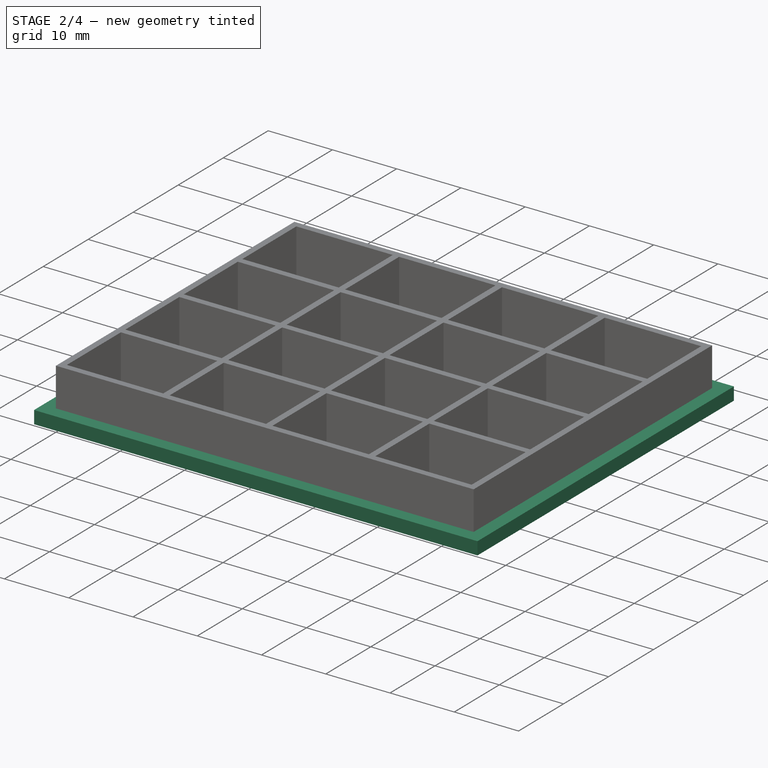
[diagram: stage 2 of 4 — iso view after this stage's code; geometry added in this stage tinted green]
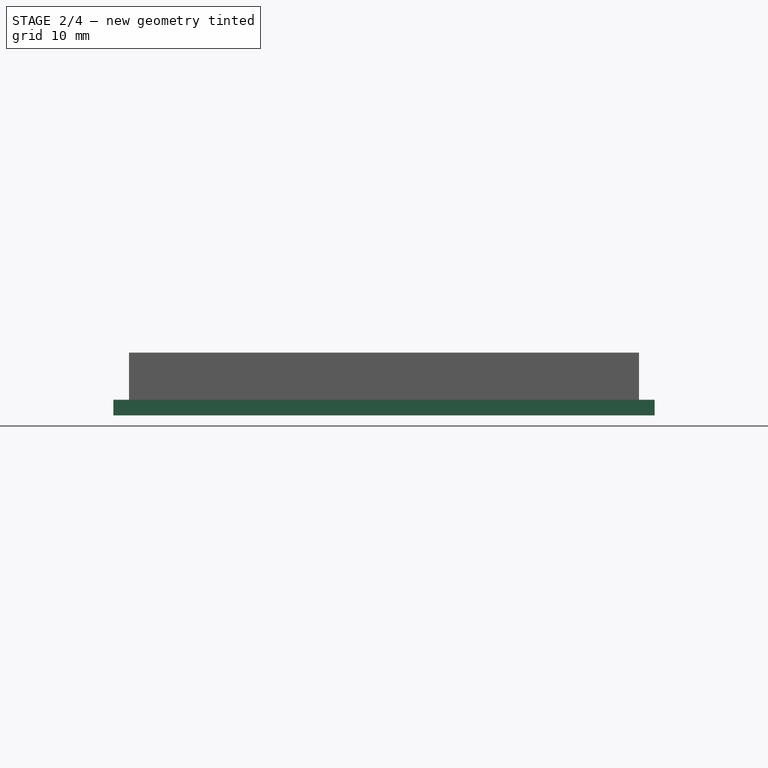
[diagram: stage 2 of 4 — front view after this stage's code; geometry added in this stage tinted green]
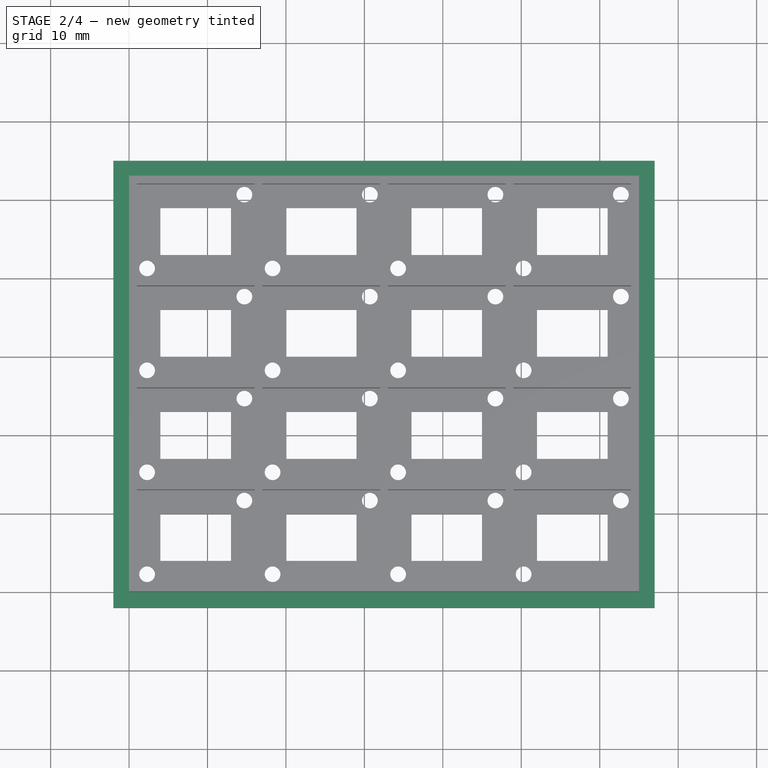
[diagram: stage 2 of 4 — top view after this stage's code; geometry added in this stage tinted green]
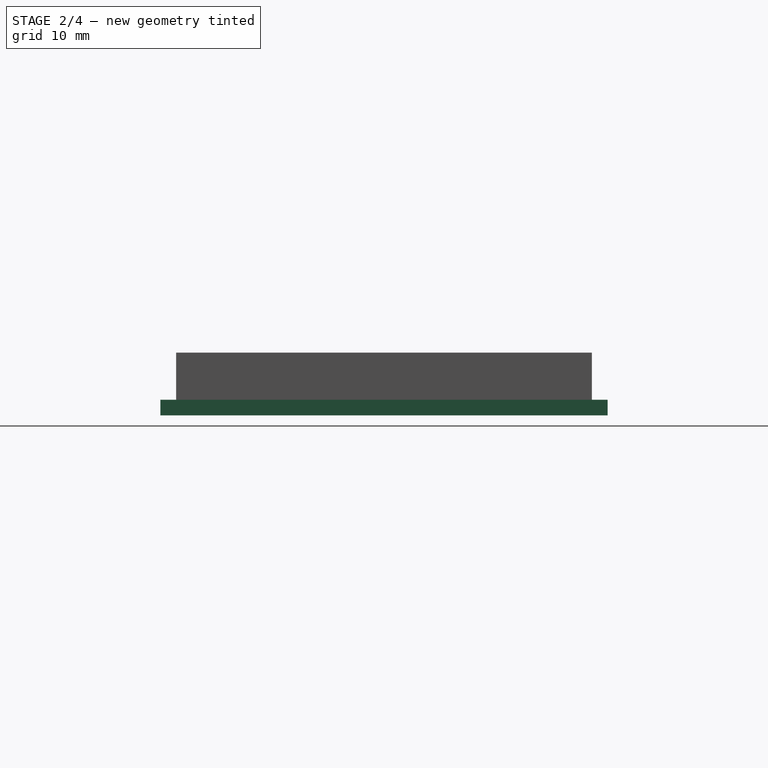
[diagram: stage 2 of 4 — right view after this stage's code; geometry added in this stage tinted green]
FEATURE [PartDesign::Body] Body001  label="Lid"
  Group = -> [ShapeBinder,Sketch003,Pad002,Sketch004,Pad003]
  Origin = -> Origin001
  Placement = pos=(65,0,9) rot=(0,1,0;3.14159rad)
  Tip = -> Pad003
FEATURE [Sketcher::SketchObject] Sketch005
  ExternalGeometry = -> [Pad001]
  FullyConstrained = true
  MapMode = 5
  Support = -> [XY_Plane]
  sketch-geometry (12):
    g0: LineSegment StartX=-2 StartY=55 StartZ=0 EndX=67 EndY=55 EndZ=0
    g1: LineSegment StartX=67 StartY=55 StartZ=0 EndX=67 EndY=-2 EndZ=0
    g2: LineSegment StartX=67 StartY=-2 StartZ=0 EndX=-2 EndY=-2 EndZ=0
    g3: LineSegment StartX=-2 StartY=-2 StartZ=0 EndX=-2 EndY=55 EndZ=0
    g4: LineSegment StartX=0 StartY=53 StartZ=0 EndX=0 EndY=55 EndZ=0
    g5: LineSegment StartX=0 StartY=53 StartZ=0 EndX=-2 EndY=53 EndZ=0
    g6: LineSegment StartX=65 StartY=0 StartZ=0 EndX=65 EndY=-2 EndZ=0
    g7: LineSegment StartX=65 StartY=0 StartZ=0 EndX=67 EndY=0 EndZ=0
    g8: LineSegment StartX=0 StartY=53 StartZ=0 EndX=65 EndY=53 EndZ=0
    g9: LineSegment StartX=65 StartY=53 StartZ=0 EndX=65 EndY=0 EndZ=0
    g10: LineSegment StartX=65 StartY=0 StartZ=0 EndX=0 EndY=0 EndZ=0
    g11: LineSegment StartX=0 StartY=0 StartZ=0 EndX=0 EndY=53 EndZ=0
  constraints (34):
    c: Coincident(g0,g1)
    c: Coincident(g1,g2)
    c: Coincident(g2,g3)
    c: Coincident(g3,g0)
    c: Horizontal(g0)
    c: Horizontal(g2)
    c: Vertical(g1)
    c: Vertical(g3)
    c: Coincident(g4,g-3)
    c: PointOnObject(g4,g0)
    c: Vertical(g4)
    c: Coincident(g5,g4)
    c: PointOnObject(g5,g3)
    c: Horizontal(g5)
    c: Coincident(g6,g-4)
    c: PointOnObject(g6,g2)
    c: Vertical(g6)
    c: Coincident(g7,g6)
    c: PointOnObject(g7,g1)
    c: Horizontal(g7)
    c: Equal(g6,g7)
    c: Equal(g7,g4)
    c: Equal(g4,g5)
    c: DistanceX(g5,g5) = 2
    c: Coincident(g8,g9)
    c: Coincident(g9,g10)
    c: Coincident(g10,g11)
    c: Coincident(g11,g8)
    c: Horizontal(g8)
    c: Horizontal(g10)
    c: Vertical(g9)
    c: Vertical(g11)
    c: Coincident(g8,g4)
    c: Coincident(g9,g6)
FEATURE [PartDesign::Pad] Pad004  label="pestania"
  BaseFeature = -> Pad001
  Direction = (1,1,1)
  Length = 2
  Length2 = 100
  Profile = -> Sketch005
  Type = 0
FEATURE [Sketcher::SketchObject] Sketch006
  ExternalGeometry = -> [Pad004]
  FullyConstrained = true
  MapMode = 5
  Support = -> [XY_Plane]
  expr: Constraints[63] = 0.4
  sketch-geometry (24):
    g0: LineSegment StartX=2.3 StartY=2.3 StartZ=0 EndX=1.9 EndY=2.3 EndZ=0
    g1: LineSegment StartX=2.3 StartY=2.3 StartZ=0 EndX=2.7 EndY=2.3 EndZ=0
    g2: LineSegment StartX=1.9 StartY=2.3 StartZ=0 EndX=2.7 EndY=2.3 EndZ=0
    g3: LineSegment StartX=2.7 StartY=2.3 StartZ=0 EndX=2.7 EndY=41.3 EndZ=0
    g4: LineSegment StartX=2.7 StartY=41.3 StartZ=0 EndX=1.9 EndY=41.3 EndZ=0
    g5: LineSegment StartX=1.9 StartY=41.3 StartZ=0 EndX=1.9 EndY=2.3 EndZ=0
    g6: LineSegment StartX=18.3 StartY=2.3 StartZ=0 EndX=17.9 EndY=2.3 EndZ=0
    g7: LineSegment StartX=18.3 StartY=2.3 StartZ=0 EndX=18.7 EndY=2.3 EndZ=0
    g8: LineSegment StartX=17.9 StartY=2.3 StartZ=0 EndX=18.7 EndY=2.3 EndZ=0
    g9: LineSegment StartX=18.7 StartY=2.3 StartZ=0 EndX=18.7 EndY=41.3 EndZ=0
    g10: LineSegment StartX=18.7 StartY=41.3 StartZ=0 EndX=17.9 EndY=41.3 EndZ=0
    g11: LineSegment StartX=17.9 StartY=41.3 StartZ=0 EndX=17.9 EndY=2.3 EndZ=0
    g12: LineSegment StartX=34.3 StartY=2.3 StartZ=0 EndX=33.9 EndY=2.3 EndZ=0
    g13: LineSegment StartX=34.3 StartY=2.3 StartZ=0 EndX=34.7 EndY=2.3 EndZ=0
    g14: LineSegment StartX=33.9 StartY=2.3 StartZ=0 EndX=34.7 EndY=2.3 EndZ=0
    g15: LineSegment StartX=34.7 StartY=2.3 StartZ=0 EndX=34.7 EndY=41.3 EndZ=0
    g16: LineSegment StartX=34.7 StartY=41.3 StartZ=0 EndX=33.9 EndY=41.3 EndZ=0
    g17: LineSegment StartX=33.9 StartY=41.3 StartZ=0 EndX=33.9 EndY=2.3 EndZ=0
    g18: LineSegment StartX=50.3 StartY=2.3 StartZ=0 EndX=49.9 EndY=2.3 EndZ=0
    g19: LineSegment StartX=50.3 StartY=2.3 StartZ=0 EndX=50.7 EndY=2.3 EndZ=0
    g20: LineSegment StartX=49.9 StartY=2.3 StartZ=0 EndX=50.7 EndY=2.3 EndZ=0
    g21: LineSegment StartX=50.7 StartY=2.3 StartZ=0 EndX=50.7 EndY=41.3 EndZ=0
    g22: LineSegment StartX=50.7 StartY=41.3 StartZ=0 EndX=49.9 EndY=41.3 EndZ=0
    g23: LineSegment StartX=49.9 StartY=41.3 StartZ=0 EndX=49.9 EndY=2.3 EndZ=0
  constraints (64):
    c: Coincident(g0,g-3)
    c: Horizontal(g1)
    c: Coincident(g0,g1)
    c: Equal(g1,g0)
    c: DistanceX(g0,g0) = 0.4
    c: Horizontal(g0)
    c: Coincident(g2,g3)
    c: Coincident(g3,g4)
    c: Coincident(g4,g5)
    c: Coincident(g5,g2)
    c: Horizontal(g4)
    c: Vertical(g3)
    c: Vertical(g5)
    c: Coincident(g1,g2)
    c: Coincident(g0,g2)
    c: PointOnObject(g-4,g4)
    c: Horizontal(g7)
    c: Coincident(g6,g7)
    c: Equal(g7,g6)
    c: Equal(g0,g6) = 0.35
    c: Horizontal(g6)
    c: Coincident(g8,g9)
    c: Coincident(g9,g10)
    c: Coincident(g10,g11)
    c: Coincident(g11,g8)
    c: Horizontal(g10)
    c: Vertical(g9)
    c: Vertical(g11)
    c: Coincident(g7,g8)
    c: Coincident(g6,g8)
    c: Coincident(g6,g-5)
    c: Horizontal(g4,g10)
    c: Horizontal(g13)
    c: Coincident(g12,g13)
    c: Equal(g13,g12)
    c: Horizontal(g12)
    c: Coincident(g14,g15)
    c: Coincident(g15,g16)
    c: Coincident(g16,g17)
    c: Coincident(g17,g14)
    c: Horizontal(g16)
    c: Vertical(g15)
    c: Vertical(g17)
    c: Coincident(g13,g14)
    c: Coincident(g12,g14)
    c: Horizontal(g19)
    c: Coincident(g18,g19)
    c: Equal(g19,g18)
    c: Horizontal(g18)
    c: Coincident(g20,g21)
    c: Coincident(g21,g22)
    c: Coincident(g22,g23)
    c: Coincident(g23,g20)
    c: Horizontal(g22)
    c: Vertical(g21)
    c: Vertical(g23)
    c: Coincident(g19,g20)
    c: Coincident(g18,g20)
    c: Horizontal(g10,g16)
    c: Horizontal(g16,g22)
    c: Equal(g7,g12)
    c: Coincident(g12,g-6)
    c: Coincident(g18,g-7)
    c: DistanceX(g19,g19) = 0.4
FEATURE [PartDesign::Pocket] Pocket001  label="canaleta row"
  BaseFeature = -> Pad004
  Direction = (1,1,1)
  Length = 0.5
  Length2 = 100
  Profile = -> Sketch006
  Reversed = true
  Type = 0
FEATURE [Sketcher::SketchObject] Sketch007
  ExternalGeometry = -> [Pocket001]
  FullyConstrained = true
  MapMode = 5
  Support = -> [XY_Plane]
  sketch-geometry (38):
    g0: LineSegment StartX=14.7 StartY=51.1 StartZ=0 EndX=30.7 EndY=51.1 EndZ=0
    g1: LineSegment StartX=30.7 StartY=51.1 StartZ=0 EndX=30.7 EndY=50.3 EndZ=0
    g2: LineSegment StartX=30.7 StartY=50.3 StartZ=0 EndX=14.7 EndY=50.3 EndZ=0
    g3: LineSegment StartX=14.7 StartY=50.3 StartZ=0 EndX=14.7 EndY=51.1 EndZ=0
    g4: LineSegment StartX=14.7 StartY=38.1 StartZ=0 EndX=30.7 EndY=38.1 EndZ=0
    g5: LineSegment StartX=30.7 StartY=38.1 StartZ=0 EndX=30.7 EndY=37.3 EndZ=0
    g6: LineSegment StartX=30.7 StartY=37.3 StartZ=0 EndX=14.7 EndY=37.3 EndZ=0
    g7: LineSegment StartX=14.7 StartY=37.3 StartZ=0 EndX=14.7 EndY=38.1 EndZ=0
    g8: LineSegment StartX=14.7 StartY=25.1 StartZ=0 EndX=30.7 EndY=25.1 EndZ=0
    g9: LineSegment StartX=30.7 StartY=25.1 StartZ=0 EndX=30.7 EndY=24.3 EndZ=0
    g10: LineSegment StartX=30.7 StartY=24.3 StartZ=0 EndX=14.7 EndY=24.3 EndZ=0
    g11: LineSegment StartX=14.7 StartY=24.3 StartZ=0 EndX=14.7 EndY=25.1 EndZ=0
    g12: LineSegment StartX=14.7 StartY=12.1 StartZ=0 EndX=30.7 EndY=12.1 EndZ=0
    g13: LineSegment StartX=30.7 StartY=12.1 StartZ=0 EndX=30.7 EndY=11.3 EndZ=0
    g14: LineSegment StartX=30.7 StartY=11.3 StartZ=0 EndX=14.7 EndY=11.3 EndZ=0
    g15: LineSegment StartX=14.7 StartY=11.3 StartZ=0 EndX=14.7 EndY=12.1 EndZ=0
    g16: LineSegment StartX=46.7 StartY=51.1 StartZ=0 EndX=62.7 EndY=51.1 EndZ=0
    g17: LineSegment StartX=62.7 StartY=51.1 StartZ=0 EndX=62.7 EndY=50.3 EndZ=0
    g18: LineSegment StartX=62.7 StartY=50.3 StartZ=0 EndX=46.7 EndY=50.3 EndZ=0
    g19: LineSegment StartX=46.7 StartY=50.3 StartZ=0 EndX=46.7 EndY=51.1 EndZ=0
    g20: LineSegment StartX=46.7 StartY=38.1 StartZ=0 EndX=62.7 EndY=38.1 EndZ=0
    g21: LineSegment StartX=62.7 StartY=38.1 StartZ=0 EndX=62.7 EndY=37.3 EndZ=0
    g22: LineSegment StartX=62.7 StartY=37.3 StartZ=0 EndX=46.7 EndY=37.3 EndZ=0
    g23: LineSegment StartX=46.7 StartY=37.3 StartZ=0 EndX=46.7 EndY=38.1 EndZ=0
    g24: LineSegment StartX=46.7 StartY=24.3 StartZ=0 EndX=62.7 EndY=24.3 EndZ=0
    g25: LineSegment StartX=62.7 StartY=24.3 StartZ=0 EndX=62.7 EndY=25.1 EndZ=0
    g26: LineSegment StartX=62.7 StartY=25.1 StartZ=0 EndX=46.7 EndY=25.1 EndZ=0
    g27: LineSegment StartX=46.7 StartY=25.1 StartZ=0 EndX=46.7 EndY=24.3 EndZ=0
    g28: LineSegment StartX=46.7 StartY=11.3 StartZ=0 EndX=62.7 EndY=11.3 EndZ=0
    g29: LineSegment StartX=62.7 StartY=11.3 StartZ=0 EndX=62.7 EndY=12.1 EndZ=0
    g30: LineSegment StartX=62.7 StartY=12.1 StartZ=0 EndX=46.7 EndY=12.1 EndZ=0
    g31: LineSegment StartX=46.7 StartY=12.1 StartZ=0 EndX=46.7 EndY=11.3 EndZ=0
    g32: LineSegment StartX=14.7 StartY=50.7 StartZ=0 EndX=14.7 EndY=51.1 EndZ=0
    g33: LineSegment StartX=14.7 StartY=50.7 StartZ=0 EndX=14.7 EndY=50.3 EndZ=0
    g34: LineSegment StartX=14.7 StartY=50.7 StartZ=0 EndX=14.7 EndY=37.7 EndZ=0
    g35: LineSegment StartX=14.7 StartY=50.3 StartZ=0 EndX=14.7 EndY=37.3 EndZ=0
    g36: LineSegment StartX=14.7 StartY=37.3 StartZ=0 EndX=14.7 EndY=24.3 EndZ=0
    g37: LineSegment StartX=14.7 StartY=24.3 StartZ=0 EndX=14.7 EndY=11.3 EndZ=0
  constraints (108):
    c: Coincident(g0,g1)
    c: Coincident(g1,g2)
    c: Coincident(g2,g3)
    c: Coincident(g3,g0)
    c: Horizontal(g0)
    c: Horizontal(g2)
    c: Vertical(g1)
    c: Vertical(g3)
    c: Coincident(g4,g5)
    c: Coincident(g5,g6)
    c: Coincident(g6,g7)
    c: Coincident(g7,g4)
    c: Horizontal(g4)
    c: Horizontal(g6)
    c: Vertical(g5)
    c: Vertical(g7)
    c: Coincident(g8,g9)
    c: Coincident(g9,g10)
    c: Coincident(g10,g11)
    c: Coincident(g11,g8)
    c: Horizontal(g8)
    c: Horizontal(g10)
    c: Vertical(g9)
    c: Vertical(g11)
    c: Coincident(g12,g13)
    c: Coincident(g13,g14)
    c: Coincident(g14,g15)
    c: Coincident(g15,g12)
    c: Horizontal(g12)
    c: Horizontal(g14)
    c: Vertical(g13)
    c: Vertical(g15)
    c: Coincident(g16,g17)
    c: Coincident(g17,g18)
    c: Coincident(g18,g19)
    c: Coincident(g19,g16)
    c: Horizontal(g16)
    c: Horizontal(g18)
    c: Vertical(g17)
    c: Vertical(g19)
    c: Coincident(g20,g21)
    c: Coincident(g21,g22)
    c: Coincident(g22,g23)
    c: Coincident(g23,g20)
    c: Horizontal(g20)
    c: Horizontal(g22)
    c: Vertical(g21)
    c: Vertical(g23)
    c: Coincident(g24,g25)
    c: Coincident(g25,g26)
    c: Coincident(g26,g27)
    c: Coincident(g27,g24)
    c: Horizontal(g24)
    c: Horizontal(g26)
    c: Vertical(g25)
    c: Vertical(g27)
    c: Coincident(g28,g29)
    c: Coincident(g29,g30)
    c: Coincident(g30,g31)
    c: Coincident(g31,g28)
    c: Horizontal(g28)
    c: Horizontal(g30)
    c: Vertical(g29)
    c: Vertical(g31)
    c: Equal(g0,g16)
    c: Equal(g16,g4)
    c: Equal(g4,g20)
    c: Equal(g20,g26)
    c: Equal(g26,g8)
    c: Equal(g8,g30)
    c: Equal(g30,g12)
    c: Vertical(g1,g4)
    c: Vertical(g4,g8)
    c: Vertical(g8,g12)
    c: Vertical(g17,g20)
    c: Vertical(g20,g25)
    c: Vertical(g25,g29)
    c: Equal(g13,g31)
    c: Equal(g31,g27)
    c: Equal(g27,g9)
    c: Equal(g9,g5)
    c: Equal(g5,g23)
    c: Equal(g23,g19)
    c: Equal(g19,g1)
    c: Horizontal(g1,g16)
    c: Horizontal(g5,g20)
    c: Horizontal(g9,g26)
    c: Horizontal(g13,g30)
    c: Vertical(g-6,g1)
    c: Vertical(g-5,g2)
    c: DistanceY(g1,g1) = 0.8
    c: Vertical(g18,g-4)
    c: Coincident(g32,g-5)
    c: Coincident(g32,g0)
    c: Coincident(g33,g32)
    c: Coincident(g33,g2)
    c: Equal(g32,g33)
    c: Coincident(g34,g32)
    c: Coincident(g34,g-7)
    c: Coincident(g35,g2)
    c: Coincident(g35,g6)
    c: Equal(g34,g35)
    c: Coincident(g36,g6)
    c: Coincident(g36,g10)
    c: Equal(g36,g34)
    c: Coincident(g37,g10)
    c: Coincident(g37,g14)
    c: Equal(g37,g36)
FEATURE [PartDesign::Pocket] Pocket002  label="Canaleta Col"
  BaseFeature = -> Pocket001
  Direction = (1,1,1)
  Length = 0.5
  Length2 = 100
  Profile = -> Sketch007
  Reversed = true
  Type = 0
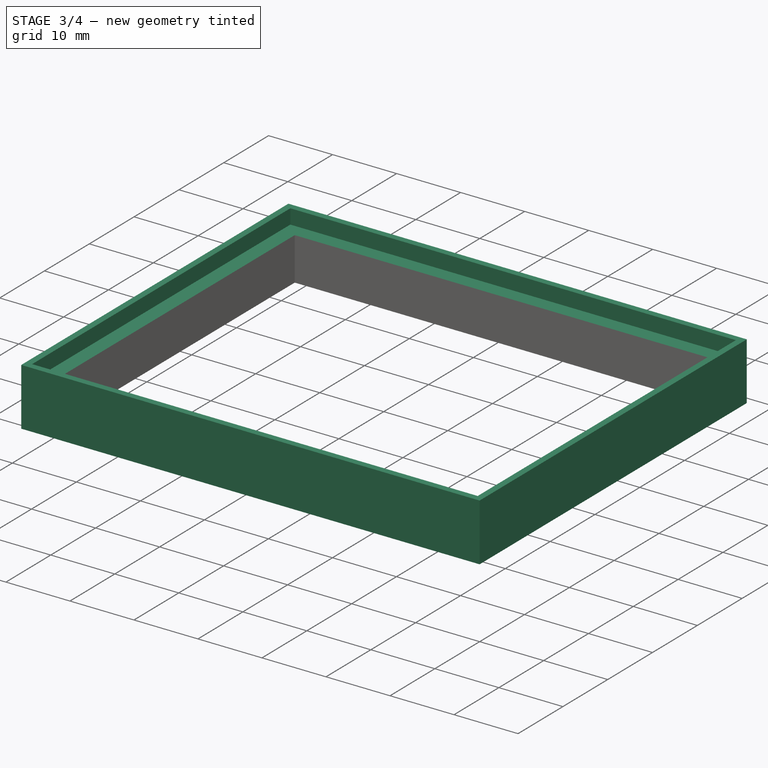
[diagram: stage 3 of 4 — iso view after this stage's code; geometry added in this stage tinted green]
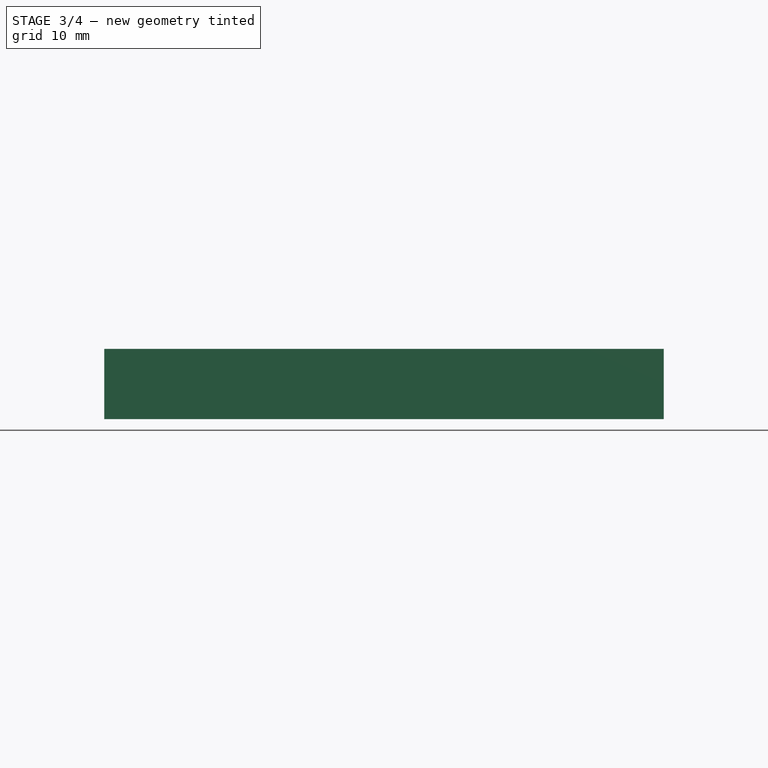
[diagram: stage 3 of 4 — front view after this stage's code; geometry added in this stage tinted green]
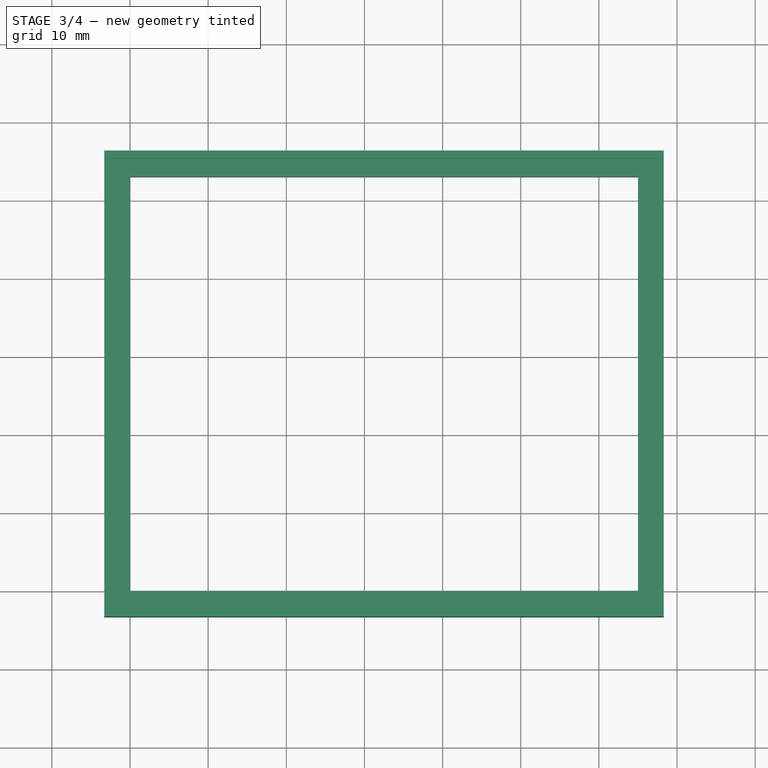
[diagram: stage 3 of 4 — top view after this stage's code; geometry added in this stage tinted green]
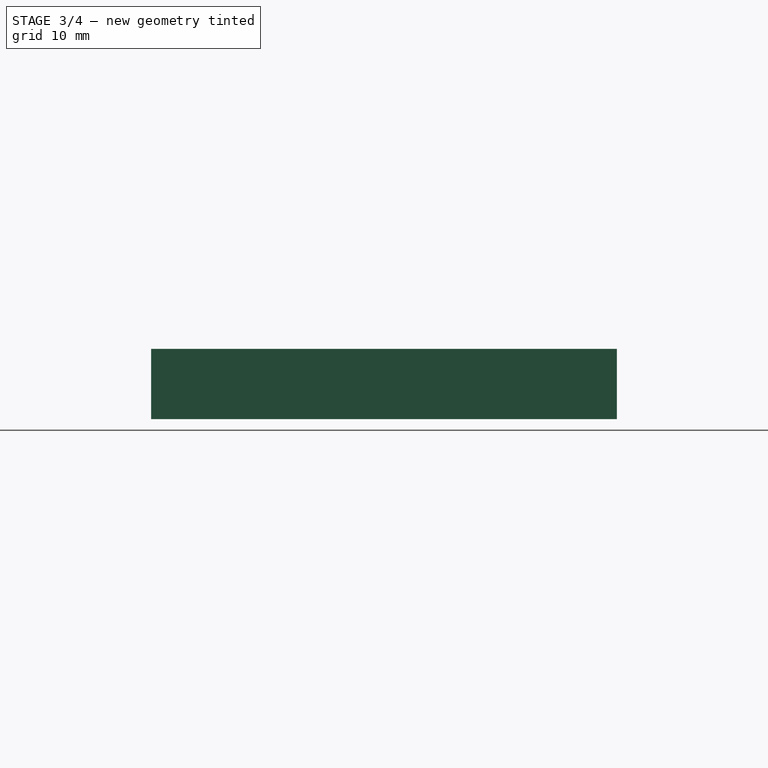
[diagram: stage 3 of 4 — right view after this stage's code; geometry added in this stage tinted green]
FEATURE [PartDesign::ShapeBinder] ShapeBinder001  label="Pestania outline"
  Support = -> [Pocket002]
  TraceSupport = false
FEATURE [Sketcher::SketchObject] Sketch008
  ExternalGeometry = -> [ShapeBinder001]
  FullyConstrained = true
  MapMode = 5
  Support = -> [XY_Plane002]
  expr: Constraints[28] = <<Spreadsheet>>.tol + <<Spreadsheet>>.outerThickness
  expr: Constraints[47] = 2
  sketch-geometry (16):
    g0: LineSegment StartX=-3.3 StartY=56.3 StartZ=0 EndX=68.3 EndY=56.3 EndZ=0
    g1: LineSegment StartX=68.3 StartY=56.3 StartZ=0 EndX=68.3 EndY=-3.3 EndZ=0
    g2: LineSegment StartX=68.3 StartY=-3.3 StartZ=0 EndX=-3.3 EndY=-3.3 EndZ=0
    g3: LineSegment StartX=-3.3 StartY=-3.3 StartZ=0 EndX=-3.3 EndY=56.3 EndZ=0
    g4: LineSegment StartX=2.63429e-11 StartY=53 StartZ=0 EndX=65 EndY=53 EndZ=0
    g5: LineSegment StartX=65 StartY=53 StartZ=0 EndX=65 EndY=-6.9704e-12 EndZ=0
    g6: LineSegment StartX=65 StartY=-6.9709e-12 StartZ=0 EndX=2.63469e-11 EndY=-6.9709e-12 EndZ=0
    g7: LineSegment StartX=2.63429e-11 StartY=-6.9709e-12 StartZ=0 EndX=2.63429e-11 EndY=53 EndZ=0
    g8: LineSegment StartX=-2 StartY=55 StartZ=0 EndX=-2 EndY=56.3 EndZ=0
    g9: LineSegment StartX=-2 StartY=55 StartZ=0 EndX=-3.3 EndY=55 EndZ=0
    g10: LineSegment StartX=67 StartY=-2 StartZ=0 EndX=68.3 EndY=-2 EndZ=0
    g11: LineSegment StartX=67 StartY=-2 StartZ=0 EndX=67 EndY=-3.3 EndZ=0
    g12: LineSegment StartX=2.63429e-11 StartY=53 StartZ=0 EndX=2.63429e-11 EndY=55 EndZ=0
    g13: LineSegment StartX=2.63429e-11 StartY=53 StartZ=0 EndX=-2 EndY=53 EndZ=0
    g14: LineSegment StartX=65 StartY=-6.9709e-12 StartZ=0 EndX=67 EndY=-6.9709e-12 EndZ=0
    g15: LineSegment StartX=65 StartY=-6.9709e-12 StartZ=0 EndX=65 EndY=-2 EndZ=0
  constraints (48):
    c: Coincident(g0,g1)
    c: Coincident(g1,g2)
    c: Coincident(g2,g3)
    c: Coincident(g3,g0)
    c: Horizontal(g0)
    c: Horizontal(g2)
    c: Vertical(g1)
    c: Vertical(g3)
    c: Coincident(g4,g5)
    c: Coincident(g5,g6)
    c: Coincident(g6,g7)
    c: Coincident(g7,g4)
    c: Horizontal(g4)
    c: Horizontal(g6)
    c: Vertical(g5)
    c: Vertical(g7)
    c: Coincident(g8,g-4)
    c: PointOnObject(g8,g0)
    c: Vertical(g8)
    c: Coincident(g9,g8)
    c: PointOnObject(g9,g3)
    c: Horizontal(g9)
    c: Coincident(g10,g-6)
    c: PointOnObject(g10,g1)
    c: Horizontal(g10)
    c: Coincident(g11,g10)
    c: PointOnObject(g11,g2)
    c: Vertical(g11)
    c: DistanceX(g10,g10) = 1.3
    c: Equal(g10,g11)
    c: Equal(g11,g8)
    c: Equal(g8,g9)
    c: Coincident(g12,g4)
    c: PointOnObject(g12,g-3)
    c: Vertical(g12)
    c: Coincident(g13,g4)
    c: PointOnObject(g13,g-4)
    c: Horizontal(g13)
    c: Coincident(g14,g5)
    c: PointOnObject(g14,g-6)
    c: Coincident(g15,g5)
    c: PointOnObject(g15,g-5)
    c: Vertical(g15)
    c: Horizontal(g14)
    c: Equal(g14,g15)
    c: Equal(g15,g12)
    c: Equal(g12,g13)
    c: DistanceX(g14,g14) = 2
FEATURE [PartDesign::Pad] Pad005  label="Base support"
  Direction = (1,1,1)
  Length = 9
  Length2 = 100
  Profile = -> Sketch008
  Type = 0
FEATURE [Sketcher::SketchObject] Sketch009
  ExternalGeometry = -> [Pad005]
  FullyConstrained = true
  MapMode = 5
  Placement = pos=(0,0,9) rot=(0,0,1;0rad)
  Support = -> [Pad005]
  expr: Constraints[23] = <<Spreadsheet>>.outerThickness
  sketch-geometry (8):
    g0: LineSegment StartX=-2.3 StartY=55.3 StartZ=0 EndX=67.3 EndY=55.3 EndZ=0
    g1: LineSegment StartX=67.3 StartY=55.3 StartZ=0 EndX=67.3 EndY=-2.3 EndZ=0
    g2: LineSegment StartX=67.3 StartY=-2.3 StartZ=0 EndX=-2.3 EndY=-2.3 EndZ=0
    g3: LineSegment StartX=-2.3 StartY=-2.3 StartZ=0 EndX=-2.3 EndY=55.3 EndZ=0
    g4: LineSegment StartX=67.3 StartY=-2.3 StartZ=0 EndX=67.3 EndY=-3.3 EndZ=0
    g5: LineSegment StartX=67.3 StartY=-2.3 StartZ=0 EndX=68.3 EndY=-2.3 EndZ=0
    g6: LineSegment StartX=-2.3 StartY=55.3 StartZ=0 EndX=-2.3 EndY=56.3 EndZ=0
    g7: LineSegment StartX=-2.3 StartY=55.3 StartZ=0 EndX=-3.3 EndY=55.3 EndZ=0
  constraints (24):
    c: Coincident(g0,g1)
    c: Coincident(g1,g2)
    c: Coincident(g2,g3)
    c: Coincident(g3,g0)
    c: Horizontal(g0)
    c: Horizontal(g2)
    c: Vertical(g1)
    c: Vertical(g3)
    c: Coincident(g4,g1)
    c: PointOnObject(g4,g-5)
    c: Vertical(g4)
    c: Coincident(g5,g1)
    c: PointOnObject(g5,g-6)
    c: Horizontal(g5)
    c: Coincident(g6,g0)
    c: PointOnObject(g6,g-3)
    c: Vertical(g6)
    c: Coincident(g7,g0)
    c: PointOnObject(g7,g-4)
    c: Horizontal(g7)
    c: Equal(g7,g6)
    c: Equal(g6,g5)
    c: Equal(g5,g4)
    c: DistanceX(g5,g5) = 1
FEATURE [PartDesign::Pocket] Pocket003  label="Pocket for matcase"
  BaseFeature = -> Pad005
  Direction = (1,1,1)
  Length = 2.3
  Length2 = 100
  Profile = -> Sketch009
  Type = 0
  expr: Length = 2.3 mm
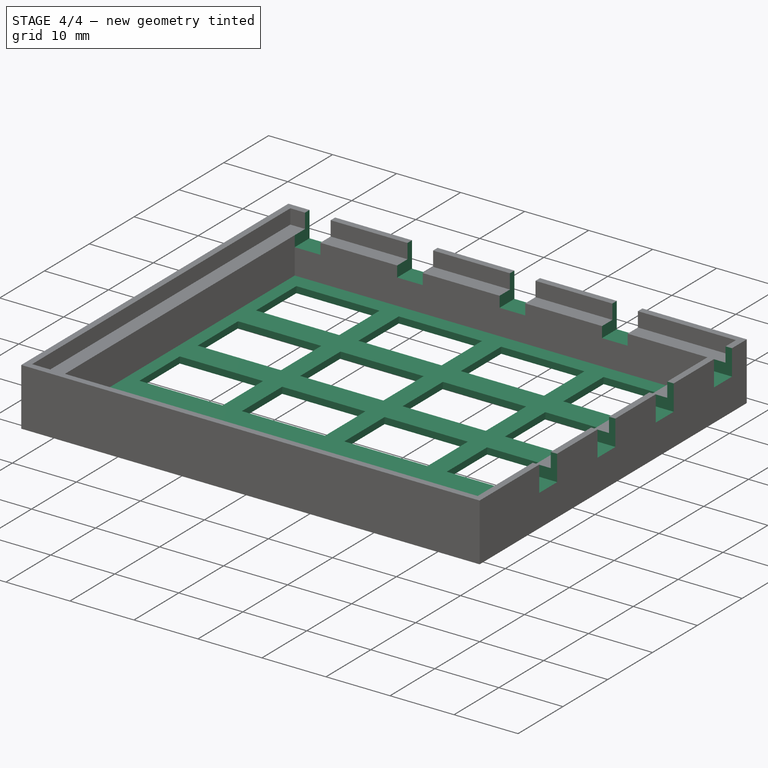
[diagram: stage 4 of 4 — iso view after this stage's code; geometry added in this stage tinted green]
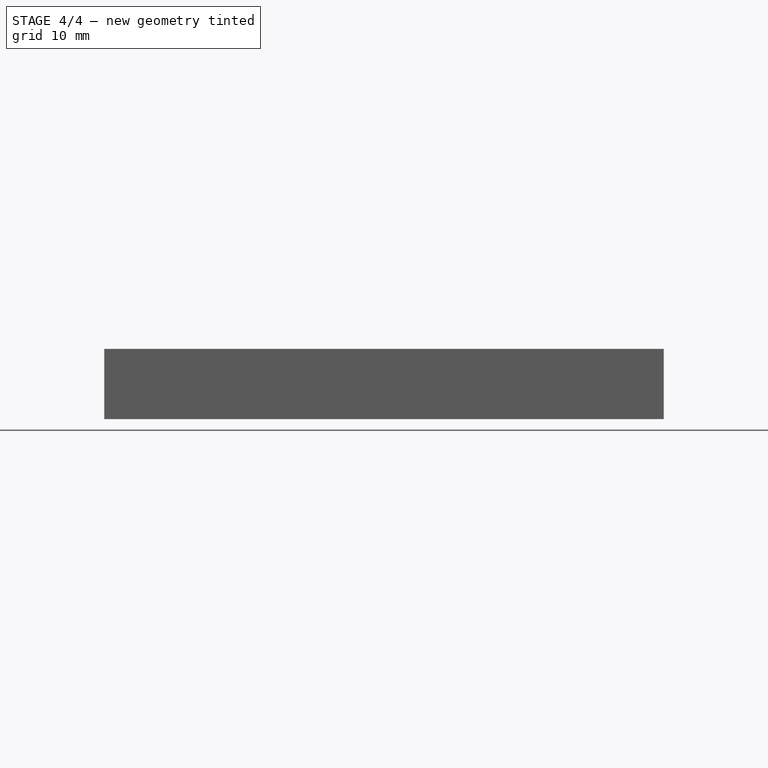
[diagram: stage 4 of 4 — front view after this stage's code; geometry added in this stage tinted green]
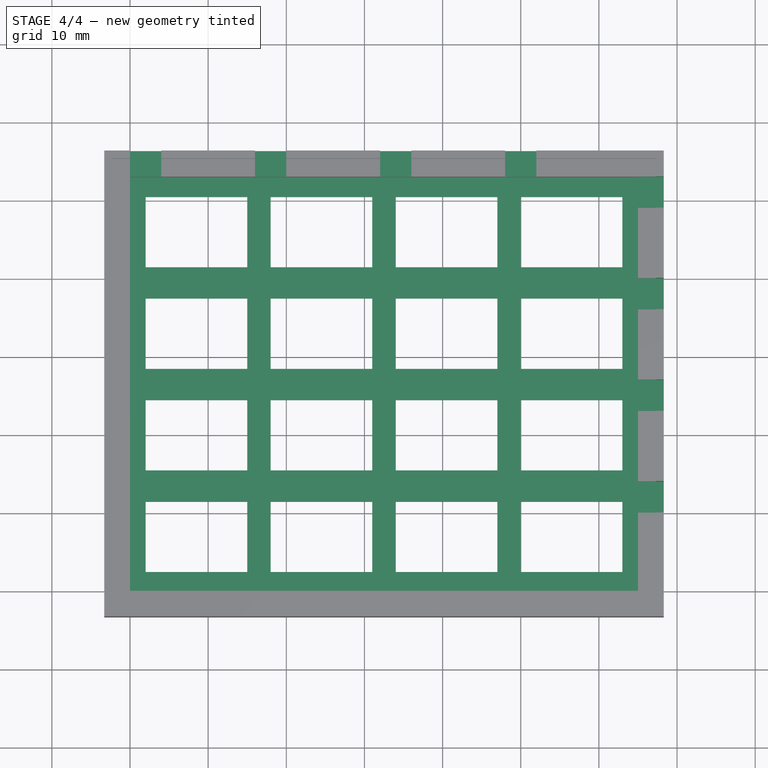
[diagram: stage 4 of 4 — top view after this stage's code; geometry added in this stage tinted green]
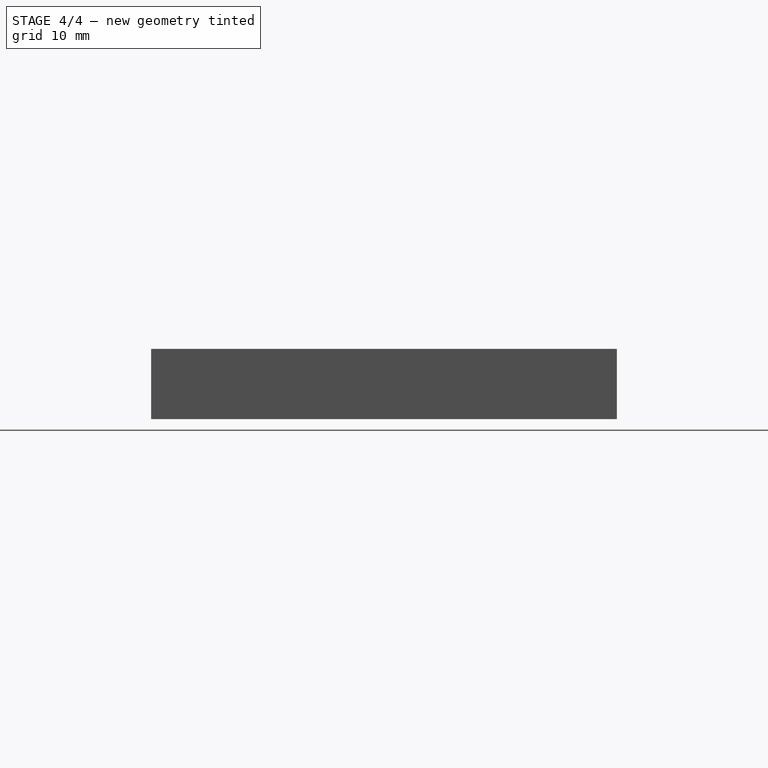
[diagram: stage 4 of 4 — right view after this stage's code; geometry added in this stage tinted green]
FEATURE [PartDesign::ShapeBinder] ShapeBinder  label="Mat case outline"
  Support = -> [Pad001]
  TraceSupport = false
FEATURE [Sketcher::SketchObject] Sketch003
  ExternalGeometry = -> [ShapeBinder]
  FullyConstrained = true
  MapMode = 5
  Support = -> [XY_Plane001]
  expr: Constraints[20] = <<Spreadsheet>>.tol + <<Spreadsheet>>.outerThickness
  expr: Constraints[256] = <<Spreadsheet>>.outerThickness * 2 + <<Spreadsheet>>.tol + (<<Spreadsheet>>.innerWidth - <<Spreadsheet>>.holeWidth) / 2
  expr: Constraints[257] = <<Spreadsheet>>.outerThickness * 2 + <<Spreadsheet>>.tol + (<<Spreadsheet>>.innerLenght - <<Spreadsheet>>.holeLenght) / 2
  expr: Constraints[59] = <<Spreadsheet>>.holeLenght
  expr: Constraints[63] = <<Spreadsheet>>.holeWidth
  sketch-geometry (91):
    g0: LineSegment StartX=-1.3 StartY=54.3 StartZ=0 EndX=66.3 EndY=54.3 EndZ=0
    g1: LineSegment StartX=66.3 StartY=54.3 StartZ=0 EndX=66.3 EndY=-1.3 EndZ=0
    g2: LineSegment StartX=66.3 StartY=-1.3 StartZ=0 EndX=-1.3 EndY=-1.3 EndZ=0
    g3: LineSegment StartX=-1.3 StartY=-1.3 StartZ=0 EndX=-1.3 EndY=54.3 EndZ=0
    g4: LineSegment StartX=0 StartY=53 StartZ=0 EndX=0 EndY=54.3 EndZ=0
    g5: LineSegment StartX=0 StartY=53 StartZ=0 EndX=-1.3 EndY=53 EndZ=0
    g6: LineSegment StartX=65 StartY=0 StartZ=0 EndX=65 EndY=-1.3 EndZ=0
    g7: LineSegment StartX=65 StartY=0 StartZ=0 EndX=66.3 EndY=0 EndZ=0
    g8: LineSegment StartX=2 StartY=50.5 StartZ=0 EndX=15 EndY=50.5 EndZ=0
    g9: LineSegment StartX=15 StartY=50.5 StartZ=0 EndX=15 EndY=41.5 EndZ=0
    g10: LineSegment StartX=15 StartY=41.5 StartZ=0 EndX=2 EndY=41.5 EndZ=0
    g11: LineSegment StartX=2 StartY=41.5 StartZ=0 EndX=2 EndY=50.5 EndZ=0
    g12: LineSegment StartX=2 StartY=37.5 StartZ=0 EndX=15 EndY=37.5 EndZ=0
    g13: LineSegment StartX=15 StartY=37.5 StartZ=0 EndX=15 EndY=28.5 EndZ=0
    g14: LineSegment StartX=15 StartY=28.5 StartZ=0 EndX=2 EndY=28.5 EndZ=0
    g15: LineSegment StartX=2 StartY=28.5 StartZ=0 EndX=2 EndY=37.5 EndZ=0
    g16: LineSegment StartX=2 StartY=24.5 StartZ=0 EndX=15 EndY=24.5 EndZ=0
    g17: LineSegment StartX=15 StartY=24.5 StartZ=0 EndX=15 EndY=15.5 EndZ=0
    g18: LineSegment StartX=15 StartY=15.5 StartZ=0 EndX=2 EndY=15.5 EndZ=0
    g19: LineSegment StartX=2 StartY=15.5 StartZ=0 EndX=2 EndY=24.5 EndZ=0
    g20: LineSegment StartX=2 StartY=11.5 StartZ=0 EndX=15 EndY=11.5 EndZ=0
    g21: LineSegment StartX=15 StartY=11.5 StartZ=0 EndX=15 EndY=2.5 EndZ=0
    g22: LineSegment StartX=15 StartY=2.5 StartZ=0 EndX=2 EndY=2.5 EndZ=0
    g23: LineSegment StartX=2 StartY=2.5 StartZ=0 EndX=2 EndY=11.5 EndZ=0
    g24: LineSegment StartX=2 StartY=41.5 StartZ=0 EndX=2 EndY=37.5 EndZ=0
    g25: LineSegment StartX=2 StartY=28.5 StartZ=0 EndX=2 EndY=24.5 EndZ=0
    g26: LineSegment StartX=2 StartY=15.5 StartZ=0 EndX=2 EndY=11.5 EndZ=0
    g27: LineSegment StartX=18 StartY=50.5 StartZ=0 EndX=31 EndY=50.5 EndZ=0
    g28: LineSegment StartX=31 StartY=50.5 StartZ=0 EndX=31 EndY=41.5 EndZ=0
    g29: LineSegment StartX=31 StartY=41.5 StartZ=0 EndX=18 EndY=41.5 EndZ=0
    g30: LineSegment StartX=18 StartY=41.5 StartZ=0 EndX=18 EndY=50.5 EndZ=0
    g31: LineSegment StartX=18 StartY=37.5 StartZ=0 EndX=31 EndY=37.5 EndZ=0
    g32: LineSegment StartX=31 StartY=37.5 StartZ=0 EndX=31 EndY=28.5 EndZ=0
    g33: LineSegment StartX=31 StartY=28.5 StartZ=0 EndX=18 EndY=28.5 EndZ=0
    g34: LineSegment StartX=18 StartY=28.5 StartZ=0 EndX=18 EndY=37.5 EndZ=0
    g35: LineSegment StartX=18 StartY=24.5 StartZ=0 EndX=31 EndY=24.5 EndZ=0
    g36: LineSegment StartX=31 StartY=24.5 StartZ=0 EndX=31 EndY=15.5 EndZ=0
    g37: LineSegment StartX=31 StartY=15.5 StartZ=0 EndX=18 EndY=15.5 EndZ=0
    g38: LineSegment StartX=18 StartY=15.5 StartZ=0 EndX=18 EndY=24.5 EndZ=0
    g39: LineSegment StartX=18 StartY=11.5 StartZ=0 EndX=31 EndY=11.5 EndZ=0
    g40: LineSegment StartX=31 StartY=11.5 StartZ=0 EndX=31 EndY=2.5 EndZ=0
    g41: LineSegment StartX=31 StartY=2.5 StartZ=0 EndX=18 EndY=2.5 EndZ=0
    g42: LineSegment StartX=18 StartY=2.5 StartZ=0 EndX=18 EndY=11.5 EndZ=0
    g43: LineSegment StartX=18 StartY=41.5 StartZ=0 EndX=18 EndY=37.5 EndZ=0
    g44: LineSegment StartX=18 StartY=28.5 StartZ=0 EndX=18 EndY=24.5 EndZ=0
    g45: LineSegment StartX=18 StartY=15.5 StartZ=0 EndX=18 EndY=11.5 EndZ=0
    g46: LineSegment StartX=15 StartY=37.5 StartZ=0 EndX=18 EndY=37.5 EndZ=0
    g47: LineSegment StartX=34 StartY=50.5 StartZ=0 EndX=47 EndY=50.5 EndZ=0
    g48: LineSegment StartX=47 StartY=50.5 StartZ=0 EndX=47 EndY=41.5 EndZ=0
    g49: LineSegment StartX=47 StartY=41.5 StartZ=0 EndX=34 EndY=41.5 EndZ=0
    g50: LineSegment StartX=34 StartY=41.5 StartZ=0 EndX=34 EndY=50.5 EndZ=0
    g51: LineSegment StartX=34 StartY=37.5 StartZ=0 EndX=47 EndY=37.5 EndZ=0
    g52: LineSegment StartX=47 StartY=37.5 StartZ=0 EndX=47 EndY=28.5 EndZ=0
    g53: LineSegment StartX=47 StartY=28.5 StartZ=0 EndX=34 EndY=28.5 EndZ=0
    g54: LineSegment StartX=34 StartY=28.5 StartZ=0 EndX=34 EndY=37.5 EndZ=0
    g55: LineSegment StartX=34 StartY=24.5 StartZ=0 EndX=47 EndY=24.5 EndZ=0
    g56: LineSegment StartX=47 StartY=24.5 StartZ=0 EndX=47 EndY=15.5 EndZ=0
    g57: LineSegment StartX=47 StartY=15.5 StartZ=0 EndX=34 EndY=15.5 EndZ=0
    g58: LineSegment StartX=34 StartY=15.5 StartZ=0 EndX=34 EndY=24.5 EndZ=0
    g59: LineSegment StartX=34 StartY=11.5 StartZ=0 EndX=47 EndY=11.5 EndZ=0
    g60: LineSegment StartX=47 StartY=11.5 StartZ=0 EndX=47 EndY=2.5 EndZ=0
    g61: LineSegment StartX=47 StartY=2.5 StartZ=0 EndX=34 EndY=2.5 EndZ=0
    g62: LineSegment StartX=34 StartY=2.5 StartZ=0 EndX=34 EndY=11.5 EndZ=0
    g63: LineSegment StartX=34 StartY=41.5 StartZ=0 EndX=34 EndY=37.5 EndZ=0
    g64: LineSegment StartX=34 StartY=28.5 StartZ=0 EndX=34 EndY=24.5 EndZ=0
    g65: LineSegment StartX=34 StartY=15.5 StartZ=0 EndX=34 EndY=11.5 EndZ=0
    g66: LineSegment StartX=50 StartY=50.5 StartZ=0 EndX=63 EndY=50.5 EndZ=0
    g67: LineSegment StartX=63 StartY=50.5 StartZ=0 EndX=63 EndY=41.5 EndZ=0
    g68: LineSegment StartX=63 StartY=41.5 StartZ=0 EndX=50 EndY=41.5 EndZ=0
    g69: LineSegment StartX=50 StartY=41.5 StartZ=0 EndX=50 EndY=50.5 EndZ=0
    g70: LineSegment StartX=50 StartY=37.5 StartZ=0 EndX=63 EndY=37.5 EndZ=0
    g71: LineSegment StartX=63 StartY=37.5 StartZ=0 EndX=63 EndY=28.5 EndZ=0
    g72: LineSegment StartX=63 StartY=28.5 StartZ=0 EndX=50 EndY=28.5 EndZ=0
    g73: LineSegment StartX=50 StartY=28.5 StartZ=0 EndX=50 EndY=37.5 EndZ=0
    g74: LineSegment StartX=50 StartY=24.5 StartZ=0 EndX=63 EndY=24.5 EndZ=0
    g75: LineSegment StartX=63 StartY=24.5 StartZ=0 EndX=63 EndY=15.5 EndZ=0
    g76: LineSegment StartX=63 StartY=15.5 StartZ=0 EndX=50 EndY=15.5 EndZ=0
    g77: LineSegment StartX=50 StartY=15.5 StartZ=0 EndX=50 EndY=24.5 EndZ=0
    g78: LineSegment StartX=50 StartY=11.5 StartZ=0 EndX=63 EndY=11.5 EndZ=0
    g79: LineSegment StartX=63 StartY=11.5 StartZ=0 EndX=63 EndY=2.5 EndZ=0
    g80: LineSegment StartX=63 StartY=2.5 StartZ=0 EndX=50 EndY=2.5 EndZ=0
    g81: LineSegment StartX=50 StartY=2.5 StartZ=0 EndX=50 EndY=11.5 EndZ=0
    g82: LineSegment StartX=50 StartY=41.5 StartZ=0 EndX=50 EndY=37.5 EndZ=0
    g83: LineSegment StartX=50 StartY=28.5 StartZ=0 EndX=50 EndY=24.5 EndZ=0
    g84: LineSegment StartX=50 StartY=15.5 StartZ=0 EndX=50 EndY=11.5 EndZ=0
    g85: LineSegment StartX=47 StartY=37.5 StartZ=0 EndX=50 EndY=37.5 EndZ=0
    g86: LineSegment StartX=31 StartY=37.5 StartZ=0 EndX=34 EndY=37.5 EndZ=0
    g87: LineSegment StartX=2 StartY=50.5 StartZ=0 EndX=-1.3 EndY=50.5 EndZ=0
    g88: LineSegment StartX=63 StartY=2.5 StartZ=0 EndX=66.3 EndY=2.5 EndZ=0
    g89: LineSegment StartX=63 StartY=50.5 StartZ=0 EndX=63 EndY=54.3 EndZ=0
    g90: LineSegment StartX=2 StartY=2.5 StartZ=0 EndX=2 EndY=-1.3 EndZ=0
  constraints (258):
    c: Coincident(g0,g1)
    c: Coincident(g1,g2)
    c: Coincident(g2,g3)
    c: Coincident(g3,g0)
    c: Horizontal(g0)
    c: Horizontal(g2)
    c: Vertical(g1)
    c: Vertical(g3)
    c: Coincident(g4,g-4)
    c: PointOnObject(g4,g0)
    c: Vertical(g4)
    c: Coincident(g5,g4)
    c: PointOnObject(g5,g3)
    c: Horizontal(g5)
    c: Coincident(g6,g-6)
    c: PointOnObject(g6,g2)
    c: Vertical(g6)
    c: Coincident(g7,g6)
    c: PointOnObject(g7,g1)
    c: Horizontal(g7)
    c: DistanceX(g7,g7) = 1.3
    c: Equal(g4,g5)
    c: Equal(g5,g6)
    c: Equal(g6,g7)
    c: Coincident(g8,g9)
    c: Coincident(g9,g10)
    c: Coincident(g10,g11)
    c: Coincident(g11,g8)
    c: Horizontal(g8)
    c: Horizontal(g10)
    c: Vertical(g9)
    c: Vertical(g11)
    c: Coincident(g12,g13)
    c: Coincident(g13,g14)
    c: Coincident(g14,g15)
    c: Coincident(g15,g12)
    c: Horizontal(g12)
    c: Horizontal(g14)
    c: Vertical(g13)
    c: Vertical(g15)
    c: Coincident(g16,g17)
    c: Coincident(g17,g18)
    c: Coincident(g18,g19)
    c: Coincident(g19,g16)
    c: Horizontal(g16)
    c: Horizontal(g18)
    c: Vertical(g17)
    c: Vertical(g19)
    c: Coincident(g20,g21)
    c: Coincident(g21,g22)
    c: Coincident(g22,g23)
    c: Coincident(g23,g20)
    c: Horizontal(g20)
    c: Horizontal(g22)
    c: Vertical(g21)
    c: Vertical(g23)
    c: Equal(g10,g12)
    c: Equal(g12,g16)
    c: Equal(g16,g20)
    c: DistanceX(g8,g8) = 13
    c: Equal(g9,g13)
    c: Equal(g13,g17)
    c: Equal(g17,g21)
    c: DistanceY(g9,g9) = 9
    c: Coincident(g24,g10)
    c: Coincident(g24,g12)
    c: Coincident(g25,g14)
    c: Coincident(g25,g16)
    c: Coincident(g26,g18)
    c: Coincident(g26,g20)
    c: Vertical(g24)
    c: Vertical(g25)
    c: Vertical(g26)
    c: Equal(g24,g25)
    c: Equal(g25,g26)
    c: Coincident(g27,g28)
    c: Coincident(g28,g29)
    c: Coincident(g29,g30)
    c: Coincident(g30,g27)
    c: Horizontal(g27)
    c: Horizontal(g29)
    c: Vertical(g28)
    c: Vertical(g30)
    c: Coincident(g31,g32)
    c: Coincident(g32,g33)
    c: Coincident(g33,g34)
    c: Coincident(g34,g31)
    c: Horizontal(g31)
    c: Horizontal(g33)
    c: Vertical(g32)
    c: Vertical(g34)
    c: Coincident(g35,g36)
    c: Coincident(g36,g37)
    c: Coincident(g37,g38)
    c: Coincident(g38,g35)
    c: Horizontal(g35)
    c: Horizontal(g37)
    c: Vertical(g36)
    c: Vertical(g38)
    c: Coincident(g39,g40)
    c: Coincident(g40,g41)
    c: Coincident(g41,g42)
    c: Coincident(g42,g39)
    c: Horizontal(g39)
    c: Horizontal(g41)
    c: Vertical(g40)
    c: Vertical(g42)
    c: Equal(g29,g31)
    c: Equal(g31,g35)
    c: Equal(g35,g39)
    c: Equal(g8,g27) = 13
    c: Equal(g28,g32)
    c: Equal(g32,g36)
    c: Equal(g36,g40)
    c: Equal(g9,g28) = 8
    c: Coincident(g43,g29)
    c: Coincident(g43,g31)
    c: Coincident(g44,g33)
    c: Coincident(g44,g35)
    c: Coincident(g45,g37)
    c: Coincident(g45,g39)
    c: Vertical(g43)
    c: Vertical(g44)
    c: Vertical(g45)
    c: Equal(g43,g44)
    c: Equal(g44,g45)
    c: Coincident(g46,g12)
    c: Coincident(g46,g31)
    c: Horizontal(g46)
    c: Equal(g43,g24)
    c: Coincident(g47,g48)
    c: Coincident(g48,g49)
    c: Coincident(g49,g50)
    c: Coincident(g50,g47)
    c: Horizontal(g47)
    c: Horizontal(g49)
    c: Vertical(g48)
    c: Vertical(g50)
    c: Coincident(g51,g52)
    c: Coincident(g52,g53)
    c: Coincident(g53,g54)
    c: Coincident(g54,g51)
    c: Horizontal(g51)
    c: Horizontal(g53)
    c: Vertical(g52)
    c: Vertical(g54)
    c: Coincident(g55,g56)
    c: Coincident(g56,g57)
    c: Coincident(g57,g58)
    c: Coincident(g58,g55)
    c: Horizontal(g55)
    c: Horizontal(g57)
    c: Vertical(g56)
    c: Vertical(g58)
    c: Coincident(g59,g60)
    c: Coincident(g60,g61)
    c: Coincident(g61,g62)
    c: Coincident(g62,g59)
    c: Horizontal(g59)
    c: Horizontal(g61)
    c: Vertical(g60)
    c: Vertical(g62)
    c: Equal(g49,g51)
    c: Equal(g51,g55)
    c: Equal(g55,g59)
    c: Equal(g8,g47) = 13
    c: Equal(g48,g52)
    c: Equal(g52,g56)
    c: Equal(g56,g60)
    c: Equal(g9,g48) = 8
    c: Coincident(g63,g49)
    c: Coincident(g63,g51)
    c: Coincident(g64,g53)
    c: Coincident(g64,g55)
    c: Coincident(g65,g57)
    c: Coincident(g65,g59)
    c: Vertical(g63)
    c: Vertical(g64)
    c: Vertical(g65)
    c: Equal(g63,g64)
    c: Equal(g64,g65)
    c: Coincident(g66,g67)
    c: Coincident(g67,g68)
    c: Coincident(g68,g69)
    c: Coincident(g69,g66)
    c: Horizontal(g66)
    c: Horizontal(g68)
    c: Vertical(g67)
    c: Vertical(g69)
    c: Coincident(g70,g71)
    c: Coincident(g71,g72)
    c: Coincident(g72,g73)
    c: Coincident(g73,g70)
    c: Horizontal(g70)
    c: Horizontal(g72)
    c: Vertical(g71)
    c: Vertical(g73)
    c: Coincident(g74,g75)
    c: Coincident(g75,g76)
    c: Coincident(g76,g77)
    c: Coincident(g77,g74)
    c: Horizontal(g74)
    c: Horizontal(g76)
    c: Vertical(g75)
    c: Vertical(g77)
    c: Coincident(g78,g79)
    c: Coincident(g79,g80)
    c: Coincident(g80,g81)
    c: Coincident(g81,g78)
    c: Horizontal(g78)
    c: Horizontal(g80)
    c: Vertical(g79)
    c: Vertical(g81)
    c: Equal(g68,g70)
    c: Equal(g70,g74)
    c: Equal(g74,g78)
    c: Equal(g47,g66) = 13
    c: Equal(g67,g71)
    c: Equal(g71,g75)
    c: Equal(g75,g79)
    c: Equal(g48,g67) = 8
    c: Coincident(g82,g68)
    c: Coincident(g82,g70)
    c: Coincident(g83,g72)
    c: Coincident(g83,g74)
    c: Coincident(g84,g76)
    c: Coincident(g84,g78)
    c: Vertical(g82)
    c: Vertical(g83)
    c: Vertical(g84)
    c: Equal(g82,g83)
    c: Equal(g83,g84)
    c: Coincident(g85,g51)
    c: Coincident(g85,g70)
    c: Horizontal(g85)
    c: Equal(g82,g63)
    c: Equal(g65,g45)
    c: Coincident(g86,g31)
    c: Coincident(g86,g51)
    c: Horizontal(g86)
    c: Equal(g86,g85)
    c: Equal(g86,g46)
    c: Coincident(g87,g8)
    c: PointOnObject(g87,g3)
    c: Horizontal(g87)
    c: Coincident(g88,g79)
    c: PointOnObject(g88,g1)
    c: Horizontal(g88)
    c: Coincident(g89,g66)
    c: PointOnObject(g89,g0)
    c: Vertical(g89)
    c: PointOnObject(g90,g2)
    c: Vertical(g90)
    c: Coincident(g90,g22)
    c: Equal(g90,g89)
    c: Equal(g87,g88)
    c: DistanceY(g89,g89) = 3.8
    c: DistanceX(g87,g87) = 3.3
FEATURE [PartDesign::Pad] Pad002  label="Lid base"
  Direction = (1,1,1)
  Length = 1
  Length2 = 100
  Profile = -> Sketch003
  Type = 0
  expr: Length = <<Spreadsheet>>.outerThickness
FEATURE [Sketcher::SketchObject] Sketch004
  ExternalGeometry = -> [Pad002]
  FullyConstrained = true
  MapMode = 5
  Support = -> [XY_Plane001]
  expr: Constraints[25] = <<Spreadsheet>>.outerThickness
  sketch-geometry (12):
    g0: LineSegment StartX=-1.3 StartY=54.3 StartZ=0 EndX=66.3 EndY=54.3 EndZ=0
    g1: LineSegment StartX=66.3 StartY=54.3 StartZ=0 EndX=66.3 EndY=-1.3 EndZ=0
    g2: LineSegment StartX=66.3 StartY=-1.3 StartZ=0 EndX=-1.3 EndY=-1.3 EndZ=0
    g3: LineSegment StartX=-1.3 StartY=-1.3 StartZ=0 EndX=-1.3 EndY=54.3 EndZ=0
    g4: LineSegment StartX=-0.3 StartY=53.3 StartZ=0 EndX=65.3 EndY=53.3 EndZ=0
    g5: LineSegment StartX=65.3 StartY=53.3 StartZ=0 EndX=65.3 EndY=-0.3 EndZ=0
    g6: LineSegment StartX=65.3 StartY=-0.3 StartZ=0 EndX=-0.3 EndY=-0.3 EndZ=0
    g7: LineSegment StartX=-0.3 StartY=-0.3 StartZ=0 EndX=-0.3 EndY=53.3 EndZ=0
    g8: LineSegment StartX=65.3 StartY=-0.3 StartZ=0 EndX=66.3 EndY=-0.3 EndZ=0
    g9: LineSegment StartX=65.3 StartY=-0.3 StartZ=0 EndX=65.3 EndY=-1.3 EndZ=0
    g10: LineSegment StartX=-0.3 StartY=53.3 StartZ=0 EndX=-0.3 EndY=54.3 EndZ=0
    g11: LineSegment StartX=-0.3 StartY=53.3 StartZ=0 EndX=-1.3 EndY=53.3 EndZ=0
  constraints (34):
    c: Coincident(g0,g1)
    c: Coincident(g1,g2)
    c: Coincident(g2,g3)
    c: Coincident(g3,g0)
    c: Horizontal(g0)
    c: Horizontal(g2)
    c: Vertical(g1)
    c: Vertical(g3)
    c: Coincident(g0,g-4)
    c: Coincident(g1,g-6)
    c: Coincident(g4,g5)
    c: Coincident(g5,g6)
    c: Coincident(g6,g7)
    c: Coincident(g7,g4)
    c: Horizontal(g4)
    c: Horizontal(g6)
    c: Vertical(g5)
    c: Vertical(g7)
    c: Coincident(g8,g5)
    c: Horizontal(g8)
    c: Coincident(g9,g5)
    c: PointOnObject(g9,g2)
    c: PointOnObject(g8,g1)
    c: Vertical(g9)
    c: Equal(g8,g9)
    c: DistanceX(g8,g8) = 1
    c: Coincident(g10,g4)
    c: PointOnObject(g10,g0)
    c: Vertical(g10)
    c: Coincident(g11,g4)
    c: PointOnObject(g11,g3)
    c: Horizontal(g11)
    c: Equal(g10,g11)
    c: Equal(g11,g8)
FEATURE [PartDesign::Pad] Pad003  label="Lid walls"
  BaseFeature = -> Pad002
  Direction = (1,1,1)
  Length = 5
  Length2 = 100
  Profile = -> Sketch004
  Type = 0
  expr: Length = <<Spreadsheet>>.lidDepth
FEATURE [Sketcher::SketchObject] Sketch010
  ExternalGeometry = -> [Pocket003]
  FullyConstrained = false
  MapMode = 5
  Placement = pos=(0,0,9) rot=(0,0,1;0rad)
  Support = -> [Pocket003]
  sketch-geometry (44):
    g0: LineSegment StartX=-6.17374 StartY=2.77278 StartZ=0 EndX=0.781224 EndY=2.77278 EndZ=0
    g1: LineSegment StartX=0.781224 StartY=2.77278 StartZ=0 EndX=0.781224 EndY=9.58865 EndZ=0
    g2: LineSegment StartX=0.781224 StartY=9.58865 StartZ=0 EndX=-6.17374 EndY=9.58865 EndZ=0
    g3: LineSegment StartX=-6.17374 StartY=9.58865 StartZ=0 EndX=-6.17374 EndY=2.77278 EndZ=0
    g4: LineSegment StartX=2.12054e-11 StartY=58.1343 StartZ=0 EndX=4 EndY=58.1343 EndZ=0
    g5: LineSegment StartX=4 StartY=58.1343 StartZ=0 EndX=4 EndY=52.0139 EndZ=0
    g6: LineSegment StartX=4 StartY=52.0139 StartZ=0 EndX=2.12053e-11 EndY=52.0139 EndZ=0
    g7: LineSegment StartX=2.12054e-11 StartY=52.0139 StartZ=0 EndX=2.12054e-11 EndY=58.1343 EndZ=0
    g8: LineSegment StartX=16 StartY=57.9952 StartZ=0 EndX=20 EndY=57.9952 EndZ=0
    g9: LineSegment StartX=20 StartY=57.9952 StartZ=0 EndX=20 EndY=51.8748 EndZ=0
    g10: LineSegment StartX=20 StartY=51.8748 StartZ=0 EndX=16 EndY=51.8748 EndZ=0
    g11: LineSegment StartX=16 StartY=51.8748 StartZ=0 EndX=16 EndY=57.9952 EndZ=0
    g12: LineSegment StartX=32 StartY=59.8411 StartZ=0 EndX=36 EndY=59.8411 EndZ=0
    g13: LineSegment StartX=36 StartY=59.8411 StartZ=0 EndX=36 EndY=51.0402 EndZ=0
    g14: LineSegment StartX=36 StartY=51.0402 StartZ=0 EndX=32 EndY=51.0402 EndZ=0
    g15: LineSegment StartX=32 StartY=51.0402 StartZ=0 EndX=32 EndY=59.8411 EndZ=0
    g16: LineSegment StartX=48 StartY=57.9478 StartZ=0 EndX=52 EndY=57.9478 EndZ=0
    g17: LineSegment StartX=52 StartY=57.9478 StartZ=0 EndX=52 EndY=51.4674 EndZ=0
    g18: LineSegment StartX=52 StartY=51.4674 StartZ=0 EndX=48 EndY=51.4674 EndZ=0
    g19: LineSegment StartX=48 StartY=51.4674 StartZ=0 EndX=48 EndY=57.9478 EndZ=0
    g20: LineSegment StartX=64.3496 StartY=53 StartZ=0 EndX=68.9399 EndY=53 EndZ=0
    g21: LineSegment StartX=68.9399 StartY=53 StartZ=0 EndX=68.9399 EndY=49 EndZ=0
    g22: LineSegment StartX=68.9399 StartY=49 StartZ=0 EndX=64.3496 EndY=49 EndZ=0
    g23: LineSegment StartX=64.3496 StartY=49 StartZ=0 EndX=64.3496 EndY=53 EndZ=0
    g24: LineSegment StartX=65.0001 StartY=40 StartZ=0 EndX=71.816 EndY=40 EndZ=0
    g25: LineSegment StartX=71.816 StartY=40 StartZ=0 EndX=71.816 EndY=36 EndZ=0
    g26: LineSegment StartX=71.816 StartY=36 StartZ=0 EndX=65.0001 EndY=36 EndZ=0
    g27: LineSegment StartX=65.0001 StartY=36 StartZ=0 EndX=65.0001 EndY=40 EndZ=0
    g28: LineSegment StartX=63.9546 StartY=27 StartZ=0 EndX=72.3005 EndY=27 EndZ=0
    g29: LineSegment StartX=72.3005 StartY=27 StartZ=0 EndX=72.3005 EndY=23 EndZ=0
    g30: LineSegment StartX=72.3005 StartY=23 StartZ=0 EndX=63.9546 EndY=23 EndZ=0
    g31: LineSegment StartX=63.9546 StartY=23 StartZ=0 EndX=63.9546 EndY=27 EndZ=0
    g32: LineSegment StartX=64.0825 StartY=14 StartZ=0 EndX=71.1766 EndY=14 EndZ=0
    g33: LineSegment StartX=71.1766 StartY=14 StartZ=0 EndX=71.1766 EndY=10 EndZ=0
    g34: LineSegment StartX=71.1766 StartY=10 StartZ=0 EndX=64.0825 EndY=10 EndZ=0
    g35: LineSegment StartX=64.0825 StartY=10 StartZ=0 EndX=64.0825 EndY=14 EndZ=0
    g36: LineSegment StartX=-3.3 StartY=56.3 StartZ=0 EndX=2.12053e-11 EndY=56.3 EndZ=0
    g37: LineSegment StartX=4 StartY=56.3 StartZ=0 EndX=16 EndY=56.3 EndZ=0
    g38: LineSegment StartX=20 StartY=56.3 StartZ=0 EndX=32 EndY=56.3 EndZ=0
    g39: LineSegment StartX=36 StartY=56.3 StartZ=0 EndX=48 EndY=56.3 EndZ=0
    g40: LineSegment StartX=68.3 StartY=56.3 StartZ=0 EndX=68.3 EndY=53 EndZ=0
    g41: LineSegment StartX=68.3 StartY=49 StartZ=0 EndX=68.3 EndY=40 EndZ=0
    g42: LineSegment StartX=68.3 StartY=36 StartZ=0 EndX=68.3 EndY=27 EndZ=0
    g43: LineSegment StartX=68.3 StartY=23 StartZ=0 EndX=68.3 EndY=14 EndZ=0
  constraints (118):
    c: Coincident(g0,g1)
    c: Coincident(g1,g2)
    c: Coincident(g2,g3)
    c: Coincident(g3,g0)
    c: Horizontal(g0)
    c: Horizontal(g2)
    c: Vertical(g1)
    c: Vertical(g3)
    c: Coincident(g4,g5)
    c: Coincident(g5,g6)
    c: Coincident(g6,g7)
    c: Coincident(g7,g4)
    c: Horizontal(g4)
    c: Horizontal(g6)
    c: Vertical(g5)
    c: Vertical(g7)
    c: Coincident(g8,g9)
    c: Coincident(g9,g10)
    c: Coincident(g10,g11)
    c: Coincident(g11,g8)
    c: Horizontal(g8)
    c: Horizontal(g10)
    c: Vertical(g9)
    c: Vertical(g11)
    c: Coincident(g12,g13)
    c: Coincident(g13,g14)
    c: Coincident(g14,g15)
    c: Coincident(g15,g12)
    c: Horizontal(g12)
    c: Horizontal(g14)
    c: Vertical(g13)
    c: Vertical(g15)
    c: Coincident(g16,g17)
    c: Coincident(g17,g18)
    c: Coincident(g18,g19)
    c: Coincident(g19,g16)
    c: Horizontal(g16)
    c: Horizontal(g18)
    c: Vertical(g17)
    c: Vertical(g19)
    c: Coincident(g20,g21)
    c: Coincident(g21,g22)
    c: Coincident(g22,g23)
    c: Coincident(g23,g20)
    c: Horizontal(g20)
    c: Horizontal(g22)
    c: Vertical(g21)
    c: Vertical(g23)
    c: Coincident(g24,g25)
    c: Coincident(g25,g26)
    c: Coincident(g26,g27)
    c: Coincident(g27,g24)
    c: Horizontal(g24)
    c: Horizontal(g26)
    c: Vertical(g25)
    c: Vertical(g27)
    c: Coincident(g28,g29)
    c: Coincident(g29,g30)
    c: Coincident(g30,g31)
    c: Coincident(g31,g28)
    c: Horizontal(g28)
    c: Horizontal(g30)
    c: Vertical(g29)
    c: Vertical(g31)
    c: Coincident(g32,g33)
    c: Coincident(g33,g34)
    c: Coincident(g34,g35)
    c: Coincident(g35,g32)
    c: Horizontal(g32)
    c: Horizontal(g34)
    c: Vertical(g33)
    c: Vertical(g35)
    c: Equal(g4,g8)
    c: Equal(g8,g12)
    c: Equal(g12,g16)
    c: Equal(g16,g21)
    c: Equal(g21,g25)
    c: Equal(g25,g29)
    c: Equal(g29,g33)
    c: DistanceY(g33,g33) = 4
    c: Coincident(g36,g-5)
    c: PointOnObject(g36,g7)
    c: Horizontal(g36)
    c: DistanceX(g36,g36) = 3.3
    c: PointOnObject(g37,g5)
    c: PointOnObject(g37,g-4)
    c: Horizontal(g37)
    c: PointOnObject(g38,g-4)
    c: PointOnObject(g38,g-4)
    c: PointOnObject(g39,g-4)
    c: PointOnObject(g39,g19)
    c: Horizontal(g39)
    c: Equal(g39,g38)
    c: Equal(g38,g37)
    c: PointOnObject(g38,g15)
    c: PointOnObject(g39,g13)
    c: PointOnObject(g38,g9)
    c: PointOnObject(g37,g11)
    c: DistanceX(g37,g37) = 12
    c: Coincident(g40,g-4)
    c: PointOnObject(g40,g-3)
    c: PointOnObject(g41,g-3)
    c: PointOnObject(g41,g-3)
    c: PointOnObject(g42,g-3)
    c: PointOnObject(g42,g-3)
    c: PointOnObject(g43,g-3)
    c: PointOnObject(g43,g-3)
    c: PointOnObject(g43,g30)
    c: PointOnObject(g43,g32)
    c: PointOnObject(g42,g28)
    c: PointOnObject(g42,g26)
    c: PointOnObject(g41,g22)
    c: PointOnObject(g41,g24)
    c: PointOnObject(g40,g20)
    c: Equal(g40,g36)
    c: Equal(g43,g42)
    c: Equal(g42,g41)
    c: DistanceY(g41,g41) = 9
FEATURE [PartDesign::Pocket] Pocket004
  BaseFeature = -> Pocket003
  Direction = (1,1,1)
  Length = 4
  Length2 = 100
  Profile = -> Sketch010
  Type = 0
FEATURE [PartDesign::Body] Body002  label="Support"
  Group = -> [ShapeBinder001,Sketch008,Pad005,Sketch009,Pocket003,Sketch010,Pocket004]
  Origin = -> Origin002
  Placement = pos=(0,0,-7) rot=(0,0,1;0rad)
  Tip = -> Pocket004
FEATURE [Sketcher::SketchObject] Sketch011
  ExternalGeometry = -> [Pad001]
  FullyConstrained = true
  MapMode = 5
  Placement = pos=(0,0,1) rot=(0,0,1;0rad)
  Support = -> [Pad001]
  sketch-geometry (4):
    g0: LineSegment StartX=1 StartY=52 StartZ=0 EndX=64 EndY=52 EndZ=0
    g1: LineSegment StartX=64 StartY=52 StartZ=0 EndX=64 EndY=1 EndZ=0
    g2: LineSegment StartX=64 StartY=1 StartZ=0 EndX=1 EndY=1 EndZ=0
    g3: LineSegment StartX=1 StartY=1 StartZ=0 EndX=1 EndY=52 EndZ=0
  constraints (10):
    c: Coincident(g0,g1)
    c: Coincident(g1,g2)
    c: Coincident(g2,g3)
    c: Coincident(g3,g0)
    c: Horizontal(g0)
    c: Horizontal(g2)
    c: Vertical(g1)
    c: Vertical(g3)
    c: Coincident(g0,g-3)
    c: Coincident(g1,g-4)
FEATURE [PartDesign::Body] Body  label="Case"
  Group = -> [Sketch,Pad,Sketch001,Pocket,Sketch002,Pad001,Sketch005,Pad004,Sketch006,Pocket001,Sketch007,Pocket002,Sketch011]
  Origin = -> Origin
  Tip = -> Pocket002
FEATURE [App::MeasureDistance] Distance  label="Distance: 15.00 mm"
  Distance = 15
  P1 = (1,40,8)
  P2 = (16,40,8)
FEATURE [App::MeasureDistance] Distance001  label="Distance: 12.00 mm"
  Distance = 12
  P1 = (16,52,8)
  P2 = (16,40,8)
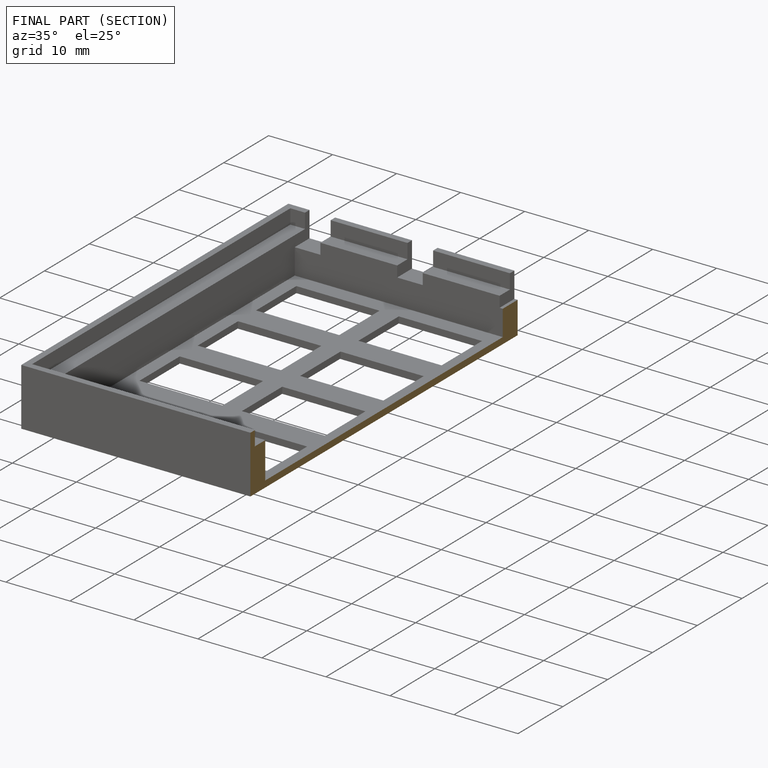
[diagram: finished part — half-section view (interior)]
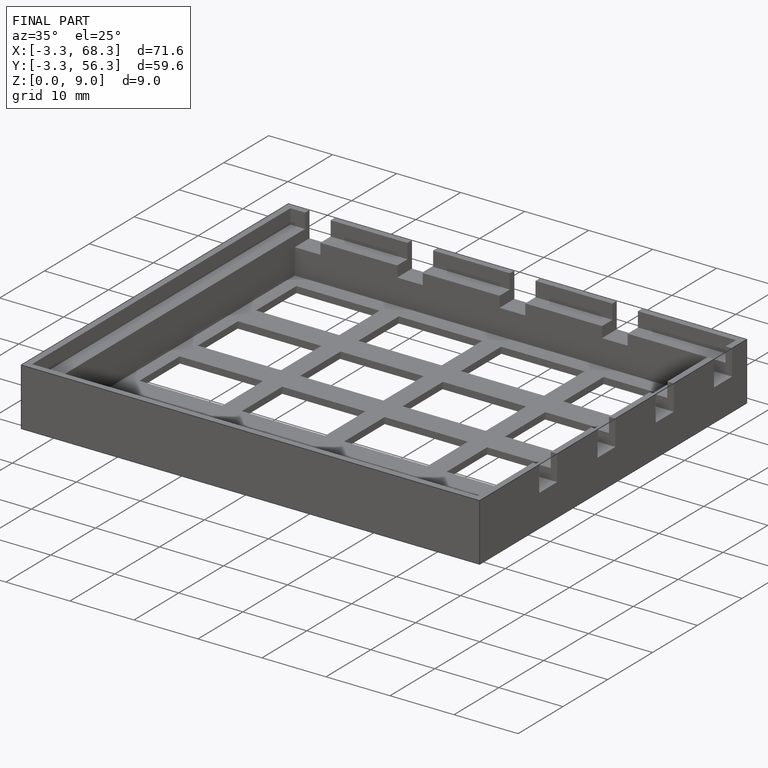
[diagram: finished part — iso view with bounding-box wireframe]
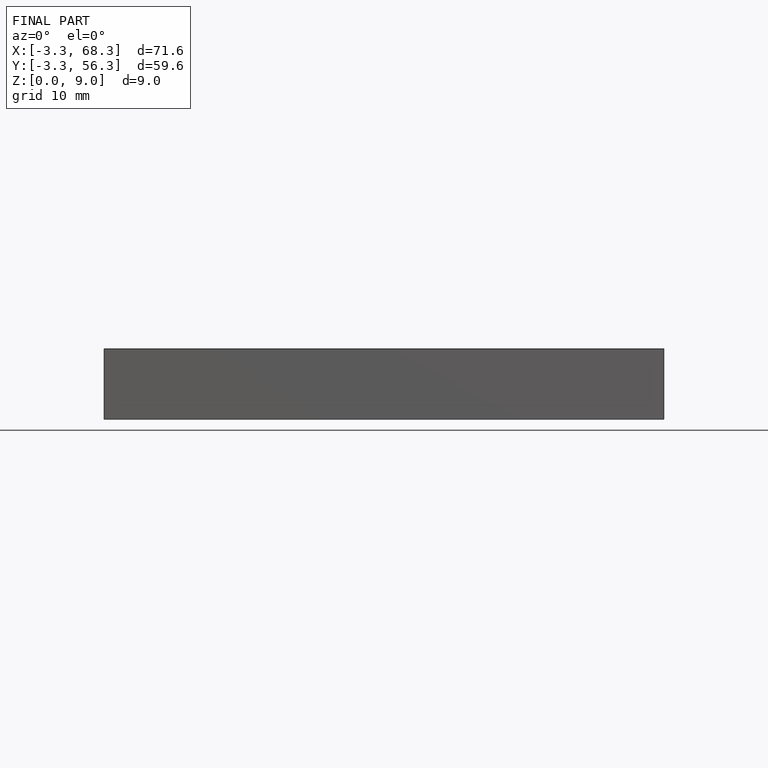
[diagram: finished part — front view with bounding-box wireframe]
